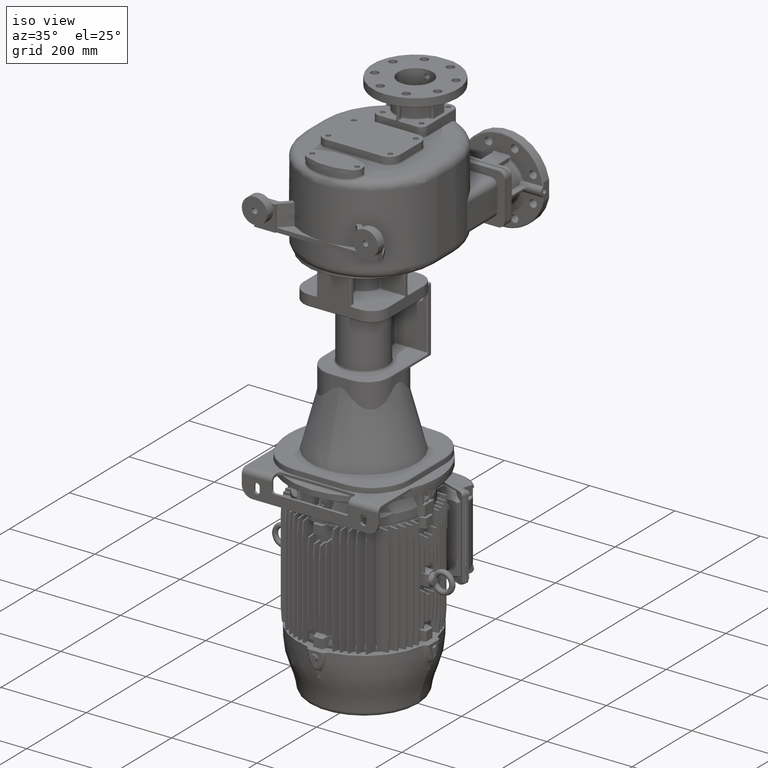
[diagram: clean part render]
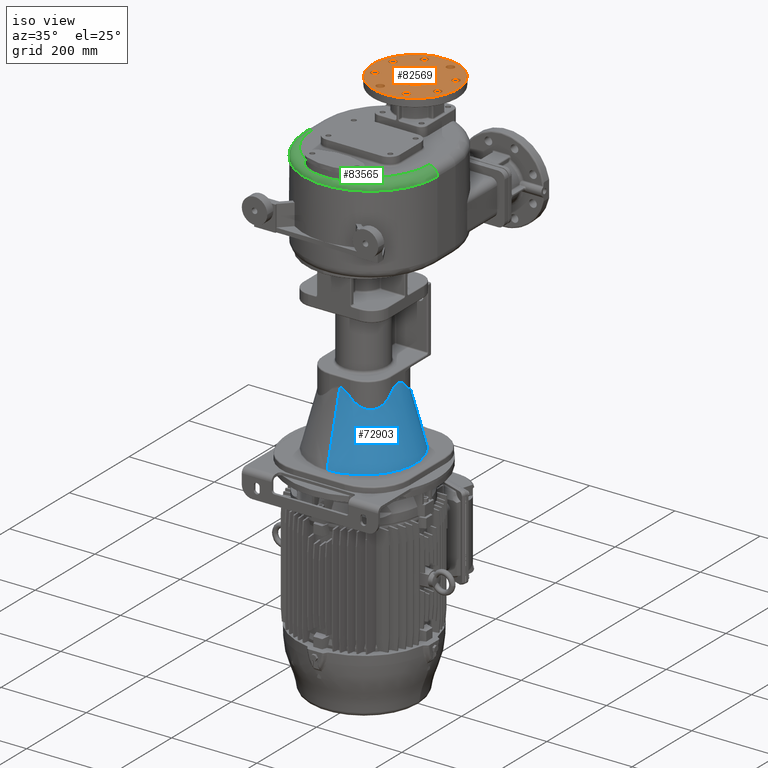
[diagram: same view with three faces highlighted in distinct colors, each labeled with its STEP entity id]
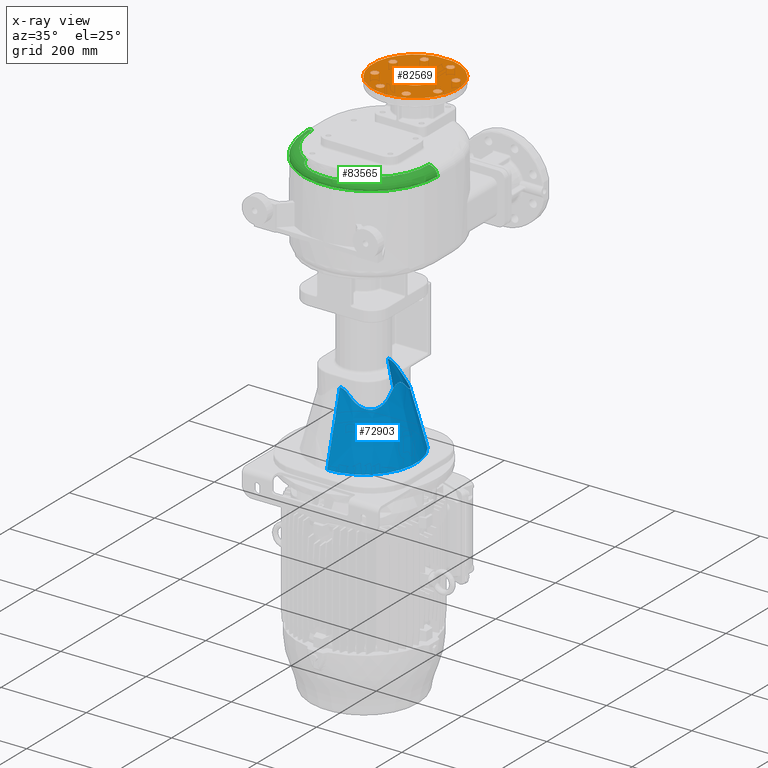
[diagram: x-ray of the same camera — body ghosted, the three highlighted faces saturated]
A machine part, iso view with three faces highlighted in distinct colors.
The next image is the same camera in x-ray (body ghosted, the three faces saturated) — at least one of them is partly hidden behind the body in this view.
Their STEP definitions:

[orange] entity #82569 — the highlighted planar face has unit normal (0, 0, 1).
#21313=CARTESIAN_POINT('',(1.6E1,3.08E2,1.98E2));
#21314=DIRECTION('',(0.E0,0.E0,1.E0));
#21315=DIRECTION('',(-1.989974874213E-1,9.8E-1,0.E0));
#21316=AXIS2_PLACEMENT_3D('',#21313,#21314,#21315);
#21322=DIRECTION('',(1.E0,0.E0,0.E0));
#21323=VECTOR('',#21322,3.979949748426E1);
#21324=CARTESIAN_POINT('',(-3.899748742132E0,4.06E2,1.98E2));
#21325=LINE('',#21324,#21323);
#21326=CARTESIAN_POINT('',(1.6E1,3.08E2,1.98E2));
#21327=DIRECTION('',(0.E0,0.E0,1.E0));
#21328=DIRECTION('',(1.E0,0.E0,0.E0));
#21329=AXIS2_PLACEMENT_3D('',#21326,#21327,#21328);
#21331=CARTESIAN_POINT('',(1.6E1,3.08E2,1.98E2));
#21332=DIRECTION('',(0.E0,0.E0,1.E0));
#21333=DIRECTION('',(-1.E0,0.E0,0.E0));
#21334=AXIS2_PLACEMENT_3D('',#21331,#21332,#21333);
#21336=CARTESIAN_POINT('',(8.991036260090E1,3.386146745892E2,1.98E2));
#21337=DIRECTION('',(0.E0,0.E0,1.E0));
#21338=DIRECTION('',(1.E0,0.E0,0.E0));
#21339=AXIS2_PLACEMENT_3D('',#21336,#21337,#21338);
#21341=CARTESIAN_POINT('',(8.991036260090E1,3.386146745892E2,1.98E2));
#21342=DIRECTION('',(0.E0,0.E0,1.E0));
#21343=DIRECTION('',(-1.E0,0.E0,0.E0));
#21344=AXIS2_PLACEMENT_3D('',#21341,#21342,#21343);
#21346=CARTESIAN_POINT('',(4.661467458921E1,3.819103626009E2,1.98E2));
#21347=DIRECTION('',(0.E0,0.E0,1.E0));
#21348=DIRECTION('',(7.071067811865E-1,7.071067811865E-1,0.E0));
#21349=AXIS2_PLACEMENT_3D('',#21346,#21347,#21348);
#21351=CARTESIAN_POINT('',(4.661467458921E1,3.819103626009E2,1.98E2));
#21352=DIRECTION('',(0.E0,0.E0,1.E0));
#21353=DIRECTION('',(-7.071067811865E-1,-7.071067811865E-1,0.E0));
#21354=AXIS2_PLACEMENT_3D('',#21351,#21352,#21353);
#21356=CARTESIAN_POINT('',(-1.461467458921E1,3.819103626009E2,1.98E2));
#21357=DIRECTION('',(0.E0,0.E0,1.E0));
#21358=DIRECTION('',(0.E0,1.E0,0.E0));
#21359=AXIS2_PLACEMENT_3D('',#21356,#21357,#21358);
#21361=CARTESIAN_POINT('',(-1.461467458921E1,3.819103626009E2,1.98E2));
#21362=DIRECTION('',(0.E0,0.E0,1.E0));
#21363=DIRECTION('',(0.E0,-1.E0,0.E0));
#21364=AXIS2_PLACEMENT_3D('',#21361,#21362,#21363);
#21366=CARTESIAN_POINT('',(-5.791036260090E1,3.386146745892E2,1.98E2));
#21367=DIRECTION('',(0.E0,0.E0,1.E0));
#21368=DIRECTION('',(-7.071067811865E-1,7.071067811865E-1,0.E0));
#21369=AXIS2_PLACEMENT_3D('',#21366,#21367,#21368);
#21371=CARTESIAN_POINT('',(-5.791036260090E1,3.386146745892E2,1.98E2));
#21372=DIRECTION('',(0.E0,0.E0,1.E0));
#21373=DIRECTION('',(7.071067811865E-1,-7.071067811866E-1,0.E0));
#21374=AXIS2_PLACEMENT_3D('',#21371,#21372,#21373);
#21376=CARTESIAN_POINT('',(-5.791036260090E1,2.773853254108E2,1.98E2));
#21377=DIRECTION('',(0.E0,0.E0,1.E0));
#21378=DIRECTION('',(-1.E0,0.E0,0.E0));
#21379=AXIS2_PLACEMENT_3D('',#21376,#21377,#21378);
#21381=CARTESIAN_POINT('',(-5.791036260090E1,2.773853254108E2,1.98E2));
#21382=DIRECTION('',(0.E0,0.E0,1.E0));
#21383=DIRECTION('',(1.E0,0.E0,0.E0));
#21384=AXIS2_PLACEMENT_3D('',#21381,#21382,#21383);
#21386=CARTESIAN_POINT('',(-1.461467458921E1,2.340896373991E2,1.98E2));
#21387=DIRECTION('',(0.E0,0.E0,1.E0));
#21388=DIRECTION('',(-7.071067811865E-1,-7.071067811865E-1,0.E0));
#21389=AXIS2_PLACEMENT_3D('',#21386,#21387,#21388);
#21391=CARTESIAN_POINT('',(-1.461467458921E1,2.340896373991E2,1.98E2));
#21392=DIRECTION('',(0.E0,0.E0,1.E0));
#21393=DIRECTION('',(7.071067811865E-1,7.071067811865E-1,0.E0));
#21394=AXIS2_PLACEMENT_3D('',#21391,#21392,#21393);
#21396=CARTESIAN_POINT('',(4.661467458921E1,2.340896373991E2,1.98E2));
#21397=DIRECTION('',(0.E0,0.E0,1.E0));
#21398=DIRECTION('',(0.E0,-1.E0,0.E0));
#21399=AXIS2_PLACEMENT_3D('',#21396,#21397,#21398);
#21401=CARTESIAN_POINT('',(4.661467458921E1,2.340896373991E2,1.98E2));
#21402=DIRECTION('',(0.E0,0.E0,1.E0));
#21403=DIRECTION('',(0.E0,1.E0,0.E0));
#21404=AXIS2_PLACEMENT_3D('',#21401,#21402,#21403);
#21406=CARTESIAN_POINT('',(8.991036260090E1,2.773853254108E2,1.98E2));
#21407=DIRECTION('',(0.E0,0.E0,1.E0));
#21408=DIRECTION('',(7.071067811865E-1,-7.071067811866E-1,0.E0));
#21409=AXIS2_PLACEMENT_3D('',#21406,#21407,#21408);
#21411=CARTESIAN_POINT('',(8.991036260090E1,2.773853254108E2,1.98E2));
#21412=DIRECTION('',(0.E0,0.E0,1.E0));
#21413=DIRECTION('',(-7.071067811865E-1,7.071067811865E-1,0.E0));
#21414=AXIS2_PLACEMENT_3D('',#21411,#21412,#21413);
#49162=CARTESIAN_POINT('',(-3.899748742132E0,4.06E2,1.98E2));
#49163=CARTESIAN_POINT('',(3.589974874213E1,4.06E2,1.98E2));
#49164=VERTEX_POINT('',#49162);
#49165=VERTEX_POINT('',#49163);
#49463=CARTESIAN_POINT('',(5.7E1,3.08E2,1.98E2));
#49464=CARTESIAN_POINT('',(-2.5E1,3.08E2,1.98E2));
#49465=VERTEX_POINT('',#49463);
#49466=VERTEX_POINT('',#49464);
#49467=CARTESIAN_POINT('',(9.891036260090E1,3.386146745892E2,1.98E2));
#49468=CARTESIAN_POINT('',(8.091036260090E1,3.386146745892E2,1.98E2));
#49469=VERTEX_POINT('',#49467);
#49470=VERTEX_POINT('',#49468);
#49475=CARTESIAN_POINT('',(5.297863561989E1,3.882743236316E2,1.98E2));
#49476=CARTESIAN_POINT('',(4.025071355853E1,3.755464015702E2,1.98E2));
#49477=VERTEX_POINT('',#49475);
#49478=VERTEX_POINT('',#49476);
#49483=CARTESIAN_POINT('',(-1.461467458921E1,3.909103626009E2,1.98E2));
#49484=CARTESIAN_POINT('',(-1.461467458921E1,3.729103626009E2,1.98E2));
#49485=VERTEX_POINT('',#49483);
#49486=VERTEX_POINT('',#49484);
#49491=CARTESIAN_POINT('',(-6.427432363158E1,3.449786356199E2,1.98E2));
#49492=CARTESIAN_POINT('',(-5.154640157022E1,3.322507135585E2,1.98E2));
#49493=VERTEX_POINT('',#49491);
#49494=VERTEX_POINT('',#49492);
#49499=CARTESIAN_POINT('',(-6.691036260090E1,2.773853254108E2,1.98E2));
#49500=CARTESIAN_POINT('',(-4.891036260090E1,2.773853254108E2,1.98E2));
#49501=VERTEX_POINT('',#49499);
#49502=VERTEX_POINT('',#49500);
#49507=CARTESIAN_POINT('',(-2.097863561989E1,2.277256763684E2,1.98E2));
#49508=CARTESIAN_POINT('',(-8.250713558528E0,2.404535984298E2,1.98E2));
#49509=VERTEX_POINT('',#49507);
#49510=VERTEX_POINT('',#49508);
#49515=CARTESIAN_POINT('',(4.661467458921E1,2.250896373991E2,1.98E2));
#49516=CARTESIAN_POINT('',(4.661467458921E1,2.430896373991E2,1.98E2));
#49517=VERTEX_POINT('',#49515);
#49518=VERTEX_POINT('',#49516);
#49523=CARTESIAN_POINT('',(9.627432363158E1,2.710213643801E2,1.98E2));
#49524=CARTESIAN_POINT('',(8.354640157022E1,2.837492864415E2,1.98E2));
#49525=VERTEX_POINT('',#49523);
#49526=VERTEX_POINT('',#49524);
#82506=CARTESIAN_POINT('',(1.6E1,3.08E2,1.98E2));
#82507=DIRECTION('',(0.E0,0.E0,1.E0));
#82508=DIRECTION('',(0.E0,1.E0,0.E0));
#82509=AXIS2_PLACEMENT_3D('',#82506,#82507,#82508);
#82510=PLANE('',#82509);
#82511=ORIENTED_EDGE('',*,*,#80061,.T.);
#82512=ORIENTED_EDGE('',*,*,#82500,.F.);
#82513=EDGE_LOOP('',(#82511,#82512));
#82514=FACE_OUTER_BOUND('',#82513,.F.);
#82516=ORIENTED_EDGE('',*,*,#82515,.T.);
#82518=ORIENTED_EDGE('',*,*,#82517,.T.);
#82519=EDGE_LOOP('',(#82516,#82518));
#82520=FACE_BOUND('',#82519,.F.);
#82522=ORIENTED_EDGE('',*,*,#82521,.T.);
#82524=ORIENTED_EDGE('',*,*,#82523,.T.);
#82525=EDGE_LOOP('',(#82522,#82524));
#82526=FACE_BOUND('',#82525,.F.);
#82528=ORIENTED_EDGE('',*,*,#82527,.T.);
#82530=ORIENTED_EDGE('',*,*,#82529,.T.);
#82531=EDGE_LOOP('',(#82528,#82530));
#82532=FACE_BOUND('',#82531,.F.);
#82534=ORIENTED_EDGE('',*,*,#82533,.T.);
#82536=ORIENTED_EDGE('',*,*,#82535,.T.);
#82537=EDGE_LOOP('',(#82534,#82536));
#82538=FACE_BOUND('',#82537,.F.);
#82540=ORIENTED_EDGE('',*,*,#82539,.T.);
#82542=ORIENTED_EDGE('',*,*,#82541,.T.);
#82543=EDGE_LOOP('',(#82540,#82542));
#82544=FACE_BOUND('',#82543,.F.);
#82546=ORIENTED_EDGE('',*,*,#82545,.T.);
#82548=ORIENTED_EDGE('',*,*,#82547,.T.);
#82549=EDGE_LOOP('',(#82546,#82548));
#82550=FACE_BOUND('',#82549,.F.);
#82552=ORIENTED_EDGE('',*,*,#82551,.T.);
#82554=ORIENTED_EDGE('',*,*,#82553,.T.);
#82555=EDGE_LOOP('',(#82552,#82554));
#82556=FACE_BOUND('',#82555,.F.);
#82558=ORIENTED_EDGE('',*,*,#82557,.T.);
#82560=ORIENTED_EDGE('',*,*,#82559,.T.);
#82561=EDGE_LOOP('',(#82558,#82560));
#82562=FACE_BOUND('',#82561,.F.);
#82564=ORIENTED_EDGE('',*,*,#82563,.T.);
#82566=ORIENTED_EDGE('',*,*,#82565,.T.);
#82567=EDGE_LOOP('',(#82564,#82566));
#82568=FACE_BOUND('',#82567,.F.);
#82569=ADVANCED_FACE('',(#82514,#82520,#82526,#82532,#82538,#82544,#82550,
#82556,#82562,#82568),#82510,.T.);
#21317=CIRCLE('',#21316,1.E2);
#21330=CIRCLE('',#21329,4.1E1);
#21335=CIRCLE('',#21334,4.1E1);
#21340=CIRCLE('',#21339,9.E0);
#21345=CIRCLE('',#21344,9.E0);
#21350=CIRCLE('',#21349,9.E0);
#21355=CIRCLE('',#21354,9.E0);
#21360=CIRCLE('',#21359,9.E0);
#21365=CIRCLE('',#21364,9.E0);
#21370=CIRCLE('',#21369,9.E0);
#21375=CIRCLE('',#21374,9.E0);
#21380=CIRCLE('',#21379,9.E0);
#21385=CIRCLE('',#21384,9.E0);
#21390=CIRCLE('',#21389,9.E0);
#21395=CIRCLE('',#21394,9.E0);
#21400=CIRCLE('',#21399,9.E0);
#21405=CIRCLE('',#21404,9.E0);
#21410=CIRCLE('',#21409,9.E0);
#21415=CIRCLE('',#21414,9.E0);
#80061=EDGE_CURVE('',#49164,#49165,#21325,.T.);
#82500=EDGE_CURVE('',#49164,#49165,#21317,.T.);
#82515=EDGE_CURVE('',#49465,#49466,#21330,.T.);
#82517=EDGE_CURVE('',#49466,#49465,#21335,.T.);
#82521=EDGE_CURVE('',#49469,#49470,#21340,.T.);
#82523=EDGE_CURVE('',#49470,#49469,#21345,.T.);
#82527=EDGE_CURVE('',#49477,#49478,#21350,.T.);
#82529=EDGE_CURVE('',#49478,#49477,#21355,.T.);
#82533=EDGE_CURVE('',#49485,#49486,#21360,.T.);
#82535=EDGE_CURVE('',#49486,#49485,#21365,.T.);
#82539=EDGE_CURVE('',#49493,#49494,#21370,.T.);
#82541=EDGE_CURVE('',#49494,#49493,#21375,.T.);
#82545=EDGE_CURVE('',#49501,#49502,#21380,.T.);
#82547=EDGE_CURVE('',#49502,#49501,#21385,.T.);
#82551=EDGE_CURVE('',#49509,#49510,#21390,.T.);
#82553=EDGE_CURVE('',#49510,#49509,#21395,.T.);
#82557=EDGE_CURVE('',#49517,#49518,#21400,.T.);
#82559=EDGE_CURVE('',#49518,#49517,#21405,.T.);
#82563=EDGE_CURVE('',#49525,#49526,#21410,.T.);
#82565=EDGE_CURVE('',#49526,#49525,#21415,.T.);

[blue] entity #72903 — the highlighted conical surface has half-angle 15 deg.
#14194=CARTESIAN_POINT('',(-1.898481759786E-14,1.58E2,-5.362764571353E2));
#14195=DIRECTION('',(0.E0,0.E0,1.E0));
#14196=DIRECTION('',(2.376209689192E-1,-9.713579541703E-1,0.E0));
#14197=AXIS2_PLACEMENT_3D('',#14194,#14195,#14196);
#14235=CARTESIAN_POINT('',(-3.750284373163E-14,2.381022225205E2,
-3.773500949365E2));
#14543=DIRECTION('',(0.E0,2.588190451061E-1,9.659258262881E-1));
#14544=VECTOR('',#14543,1.645326772238E2);
#14545=CARTESIAN_POINT('',(0.E0,3.531358707165E1,-5.362764571353E2));
#14546=LINE('',#14545,#14544);
#14547=CARTESIAN_POINT('',(2.319506396796E1,7.778373711082E1,
-3.900399315817E2));
#14548=CARTESIAN_POINT('',(2.288359843523E1,7.778661370874E1,
-3.897067289652E2));
#14549=CARTESIAN_POINT('',(2.226863818762E1,7.779220502480E1,
-3.890611301452E2));
#14550=CARTESIAN_POINT('',(2.137324140060E1,7.780009239633E1,
-3.881557259198E2));
#14551=CARTESIAN_POINT('',(2.050004827563E1,7.780753607654E1,
-3.873058945816E2));
#14552=CARTESIAN_POINT('',(1.964856931573E1,7.781455187850E1,
-3.865090249327E2));
#14553=CARTESIAN_POINT('',(1.881811140830E1,7.782115765770E1,
-3.857623363367E2));
#14554=CARTESIAN_POINT('',(1.800717068037E1,7.782737707550E1,
-3.850625046679E2));
#14555=CARTESIAN_POINT('',(1.721497222698E1,7.783322727207E1,
-3.844070239507E2));
#14556=CARTESIAN_POINT('',(1.644044440833E1,7.783872706077E1,
-3.837932733923E2));
#14557=CARTESIAN_POINT('',(1.568268036622E1,7.784389316103E1,
-3.832189200329E2));
#14558=CARTESIAN_POINT('',(1.494077587742E1,7.784874167591E1,
-3.826817647559E2));
#14559=CARTESIAN_POINT('',(1.421386435068E1,7.785328777749E1,
-3.821797665888E2));
#14560=CARTESIAN_POINT('',(1.350111279408E1,7.785754575579E1,
-3.817110299790E2));
#14561=CARTESIAN_POINT('',(1.280171576461E1,7.786152905448E1,
-3.812737936328E2));
#14562=CARTESIAN_POINT('',(1.211489612809E1,7.786525027638E1,
-3.808664241492E2));
#14563=CARTESIAN_POINT('',(1.143990248715E1,7.786872119480E1,
-3.804874079932E2));
#14564=CARTESIAN_POINT('',(1.077600792649E1,7.787195280823E1,
-3.801353446267E2));
#14565=CARTESIAN_POINT('',(1.012250753636E1,7.787495539918E1,
-3.798089394529E2));
#14566=CARTESIAN_POINT('',(9.478717047014E0,7.787773853977E1,
-3.795069980713E2));
#14567=CARTESIAN_POINT('',(8.843971320534E0,7.788031110969E1,
-3.792284208210E2));
#14568=CARTESIAN_POINT('',(8.217622980455E0,7.788268131483E1,
-3.789721977943E2));
#14569=CARTESIAN_POINT('',(7.599041007341E0,7.788485669848E1,
-3.787374042576E2));
#14570=CARTESIAN_POINT('',(6.987610053467E0,7.788684419868E1,
-3.785231965037E2));
#14571=CARTESIAN_POINT('',(6.382728527638E0,7.788865017662E1,
-3.783288077016E2));
#14572=CARTESIAN_POINT('',(5.783807710785E0,7.789028041059E1,
-3.781535446081E2));
#14573=CARTESIAN_POINT('',(5.190269569584E0,7.789174011402E1,
-3.779967841122E2));
#14574=CARTESIAN_POINT('',(4.601547002466E0,7.789303394111E1,
-3.778579709856E2));
#14575=CARTESIAN_POINT('',(4.017084441943E0,7.789416600345E1,
-3.777366151512E2));
#14576=CARTESIAN_POINT('',(3.436319602490E0,7.789513989709E1,
-3.776322874809E2));
#14577=CARTESIAN_POINT('',(2.858749675755E0,7.789595869338E1,
-3.775446265706E2));
#14578=CARTESIAN_POINT('',(2.283741555897E0,7.789662515704E1,
-3.774733127190E2));
#14579=CARTESIAN_POINT('',(1.710935328609E0,7.789714119506E1,
-3.774181163803E2));
#14580=CARTESIAN_POINT('',(1.139637366501E0,7.789750873704E1,
-3.773788219682E2));
#14581=CARTESIAN_POINT('',(5.691455433598E-1,7.789772876202E1,
-3.773553004476E2));
#14582=CARTESIAN_POINT('',(1.896066888692E-1,7.789777746899E1,
-3.773500950132E2));
#14583=CARTESIAN_POINT('',(2.926700974624E-14,7.789777747946E1,
-3.773500949365E2));
#14585=CARTESIAN_POINT('',(8.021626288916E1,1.348049360320E2,
-3.900399315817E2));
#14586=CARTESIAN_POINT('',(8.021999475137E1,1.344008613964E2,
-3.904722062734E2));
#14587=CARTESIAN_POINT('',(8.021874098262E1,1.335974927809E2,
-3.913206516273E2));
#14588=CARTESIAN_POINT('',(8.019169096466E1,1.324084485168E2,
-3.925448786536E2));
#14589=CARTESIAN_POINT('',(8.014043502414E1,1.312351076057E2,
-3.937225575458E2));
#14590=CARTESIAN_POINT('',(8.006591372383E1,1.300778873720E2,
-3.948547530877E2));
#14591=CARTESIAN_POINT('',(7.996906092865E1,1.289370905124E2,
-3.959426080158E2));
#14592=CARTESIAN_POINT('',(7.985076686370E1,1.278127590410E2,
-3.969874556058E2));
#14593=CARTESIAN_POINT('',(7.971190654322E1,1.267050385704E2,
-3.979904709308E2));
#14594=CARTESIAN_POINT('',(7.955332194693E1,1.256139720782E2,
-3.989528692945E2));
#14595=CARTESIAN_POINT('',(7.937582728283E1,1.245395815964E2,
-3.998758287319E2));
#14596=CARTESIAN_POINT('',(7.918020743301E1,1.234818542278E2,
-4.007605048759E2));
#14597=CARTESIAN_POINT('',(7.896721672202E1,1.224407435813E2,
-4.016080298810E2));
#14598=CARTESIAN_POINT('',(7.873757912815E1,1.214161753893E2,
-4.024195085420E2));
#14599=CARTESIAN_POINT('',(7.849198753309E1,1.204080477121E2,
-4.031960188631E2));
#14600=CARTESIAN_POINT('',(7.823110376669E1,1.194162344945E2,
-4.039386098971E2));
#14601=CARTESIAN_POINT('',(7.795555850643E1,1.184405870746E2,
-4.046483018131E2));
#14602=CARTESIAN_POINT('',(7.766595128989E1,1.174809363509E2,
-4.053260850308E2));
#14603=CARTESIAN_POINT('',(7.736285062766E1,1.165370947842E2,
-4.059729196012E2));
#14604=CARTESIAN_POINT('',(7.704679418406E1,1.156088582864E2,
-4.065897347049E2));
#14605=CARTESIAN_POINT('',(7.671828912981E1,1.146960083458E2,
-4.071774279835E2));
#14606=CARTESIAN_POINT('',(7.637781260497E1,1.137983139864E2,
-4.077368651744E2));
#14607=CARTESIAN_POINT('',(7.602581202268E1,1.129155330274E2,
-4.082688802583E2));
#14608=CARTESIAN_POINT('',(7.566270553545E1,1.120474137552E2,
-4.087742751848E2));
#14609=CARTESIAN_POINT('',(7.528888254091E1,1.111936964524E2,
-4.092538197483E2));
#14610=CARTESIAN_POINT('',(7.490470419167E1,1.103541148010E2,
-4.097082515238E2));
#14611=CARTESIAN_POINT('',(7.451050416815E1,1.095283976472E2,
-4.101382756973E2));
#14612=CARTESIAN_POINT('',(7.410658931007E1,1.087162702196E2,
-4.105445652939E2));
#14613=CARTESIAN_POINT('',(7.369324007978E1,1.079174550453E2,
-4.109277613753E2));
#14614=CARTESIAN_POINT('',(7.327071123717E1,1.071316732009E2,
-4.112884730981E2));
#14615=CARTESIAN_POINT('',(7.283923248650E1,1.063586453980E2,
-4.116272778687E2));
#14616=CARTESIAN_POINT('',(7.239900906018E1,1.055980929291E2,
-4.119447214972E2));
#14617=CARTESIAN_POINT('',(7.195022273368E1,1.048497391345E2,
-4.122413183860E2));
#14618=CARTESIAN_POINT('',(7.149303232423E1,1.041133099866E2,
-4.125175519192E2));
#14619=CARTESIAN_POINT('',(7.102757426105E1,1.033885348761E2,
-4.127738745976E2));
#14620=CARTESIAN_POINT('',(7.055396319337E1,1.026751473631E2,
-4.130107082967E2));
#14621=CARTESIAN_POINT('',(7.007229264586E1,1.019728859880E2,
-4.132284444684E2));
#14622=CARTESIAN_POINT('',(6.958263580990E1,1.012814952499E2,
-4.134274442559E2));
#14623=CARTESIAN_POINT('',(6.908504620455E1,1.006007261783E2,
-4.136080390797E2));
#14624=CARTESIAN_POINT('',(6.857955829682E1,9.993033705086E1,
-4.137705307193E2));
#14625=CARTESIAN_POINT('',(6.806618784283E1,9.927009372312E1,
-4.139151914908E2));
#14626=CARTESIAN_POINT('',(6.754493259092E1,9.861977040020E1,
-4.140422644003E2));
#14627=CARTESIAN_POINT('',(6.701577296307E1,9.797915034030E1,
-4.141519633128E2));
#14628=CARTESIAN_POINT('',(6.647867249737E1,9.734802627631E1,
-4.142444731146E2));
#14629=CARTESIAN_POINT('',(6.593357867288E1,9.672620111729E1,
-4.143199502163E2));
#14630=CARTESIAN_POINT('',(6.538042319655E1,9.611348828749E1,
-4.143785224372E2));
#14631=CARTESIAN_POINT('',(6.481912245121E1,9.550971219249E1,
-4.144202890442E2));
#14632=CARTESIAN_POINT('',(6.424957809332E1,9.491470882530E1,
-4.144453208211E2));
#14633=CARTESIAN_POINT('',(6.367167767168E1,9.432832638165E1,
-4.144536601243E2));
#14634=CARTESIAN_POINT('',(6.308529513274E1,9.375042574892E1,
-4.144453209345E2));
#14635=CARTESIAN_POINT('',(6.249029148923E1,9.318088101832E1,
-4.144202892519E2));
#14636=CARTESIAN_POINT('',(6.188651487529E1,9.261957969482E1,
-4.143785227047E2));
#14637=CARTESIAN_POINT('',(6.127380142485E1,9.206642358237E1,
-4.143199504999E2));
#14638=CARTESIAN_POINT('',(6.065197570909E1,9.152132921331E1,
-4.142444733834E2));
#14639=CARTESIAN_POINT('',(6.002085108896E1,9.098422823044E1,
-4.141519635454E2));
#14640=CARTESIAN_POINT('',(5.938023054361E1,9.045506817324E1,
-4.140422645768E2));
#14641=CARTESIAN_POINT('',(5.872990670256E1,8.993381248856E1,
-4.139151915840E2));
#14642=CARTESIAN_POINT('',(5.806966279405E1,8.942044157946E1,
-4.137705306891E2));
#14643=CARTESIAN_POINT('',(5.739927310856E1,8.891495326259E1,
-4.136080389013E2));
#14644=CARTESIAN_POINT('',(5.671850355746E1,8.841736332872E1,
-4.134274439287E2));
#14645=CARTESIAN_POINT('',(5.602711234456E1,8.792770618870E1,
-4.132284439732E2));
#14646=CARTESIAN_POINT('',(5.532485051912E1,8.744603537431E1,
-4.130107076195E2));
#14647=CARTESIAN_POINT('',(5.461146248576E1,8.697242401251E1,
-4.127738736970E2));
#14648=CARTESIAN_POINT('',(5.388668686929E1,8.650696568726E1,
-4.125175507766E2));
#14649=CARTESIAN_POINT('',(5.315025726999E1,8.604977506953E1,
-4.122413170017E2));
#14650=CARTESIAN_POINT('',(5.240190303340E1,8.560098855787E1,
-4.119447198577E2));
#14651=CARTESIAN_POINT('',(5.164135011423E1,8.516076495979E1,
-4.116272759508E2));
#14652=CARTESIAN_POINT('',(5.086832184651E1,8.472928604640E1,
-4.112884708793E2));
#14653=CARTESIAN_POINT('',(5.008253957232E1,8.430675707849E1,
-4.109277588510E2));
#14654=CARTESIAN_POINT('',(4.928372402953E1,8.389340777025E1,
-4.105445624777E2));
#14655=CARTESIAN_POINT('',(4.847159627378E1,8.348949286760E1,
-4.101382725954E2));
#14656=CARTESIAN_POINT('',(4.764587880691E1,8.309529281879E1,
-4.097082481309E2));
#14657=CARTESIAN_POINT('',(4.680629688039E1,8.271111447299E1,
-4.092538160727E2));
#14658=CARTESIAN_POINT('',(4.595257936010E1,8.233729151685E1,
-4.087742712478E2));
#14659=CARTESIAN_POINT('',(4.508445991862E1,8.197418509544E1,
-4.082688760799E2));
#14660=CARTESIAN_POINT('',(4.420167882856E1,8.162218459990E1,
-4.077368607707E2));
#14661=CARTESIAN_POINT('',(4.330398438563E1,8.128170818419E1,
-4.071774233787E2));
#14662=CARTESIAN_POINT('',(4.239113441322E1,8.095320326007E1,
-4.065897299289E2));
#14663=CARTESIAN_POINT('',(4.146289791125E1,8.063714695651E1,
-4.059729146708E2));
#14664=CARTESIAN_POINT('',(4.051905637518E1,8.033404644563E1,
-4.053260799685E2));
#14665=CARTESIAN_POINT('',(3.955940577378E1,8.004443940612E1,
-4.046482966851E2));
#14666=CARTESIAN_POINT('',(3.858375853649E1,7.976889433445E1,
-4.039386047516E2));
#14667=CARTESIAN_POINT('',(3.759194551382E1,7.950801075267E1,
-4.031960137163E2));
#14668=CARTESIAN_POINT('',(3.658381806421E1,7.926241934306E1,
-4.024195034262E2));
#14669=CARTESIAN_POINT('',(3.555925023670E1,7.903278195615E1,
-4.016080249129E2));
#14670=CARTESIAN_POINT('',(3.451814004775E1,7.881979145516E1,
-4.007605001489E2));
#14671=CARTESIAN_POINT('',(3.346041308294E1,7.862417178895E1,
-3.998758242172E2));
#14672=CARTESIAN_POINT('',(3.238602308432E1,7.844667730581E1,
-3.989528650794E2));
#14673=CARTESIAN_POINT('',(3.129495724673E1,7.828809289526E1,
-3.979904671871E2));
#14674=CARTESIAN_POINT('',(3.018723745920E1,7.814923273800E1,
-3.969874523892E2));
#14675=CARTESIAN_POINT('',(2.906290674210E1,7.803093881497E1,
-3.959426054254E2));
#14676=CARTESIAN_POINT('',(2.792211030136E1,7.793408610396E1,
-3.948547508389E2));
#14677=CARTESIAN_POINT('',(2.676489032510E1,7.785956486764E1,
-3.937225554906E2));
#14678=CARTESIAN_POINT('',(2.559155011324E1,7.780830899421E1,
-3.925448772561E2));
#14679=CARTESIAN_POINT('',(2.440250643313E1,7.778125901340E1,
-3.913206507998E2));
#14680=CARTESIAN_POINT('',(2.359913833066E1,7.778000524917E1,
-3.904722059849E2));
#14681=CARTESIAN_POINT('',(2.319506396796E1,7.778373711082E1,
-3.900399315817E2));
#14683=CARTESIAN_POINT('',(8.021626288916E1,1.811950639679E2,
-3.900399315817E2));
#14684=CARTESIAN_POINT('',(8.021337708996E1,1.808826019543E2,
-3.897056629505E2));
#14685=CARTESIAN_POINT('',(8.020776865407E1,1.802657261676E2,
-3.890580940221E2));
#14686=CARTESIAN_POINT('',(8.019985970962E1,1.793677366824E2,
-3.881502322208E2));
#14687=CARTESIAN_POINT('',(8.019239756696E1,1.784921504811E2,
-3.872983291904E2));
#14688=CARTESIAN_POINT('',(8.018536823674E1,1.776387232108E2,
-3.864999695796E2));
#14689=CARTESIAN_POINT('',(8.017875137900E1,1.768064943415E2,
-3.857520825888E2));
#14690=CARTESIAN_POINT('',(8.017252416041E1,1.759940725855E2,
-3.850514202157E2));
#14691=CARTESIAN_POINT('',(8.016666871228E1,1.752006236648E2,
-3.843953925218E2));
#14692=CARTESIAN_POINT('',(8.016116586727E1,1.744250655111E2,
-3.837813451027E2));
#14693=CARTESIAN_POINT('',(8.015599864105E1,1.736664798874E2,
-3.832069118934E2));
#14694=CARTESIAN_POINT('',(8.015115068624E1,1.729239470027E2,
-3.826698605547E2));
#14695=CARTESIAN_POINT('',(8.014660659167E1,1.721965877414E2,
-3.821681215398E2));
#14696=CARTESIAN_POINT('',(8.014235183219E1,1.714835562918E2,
-3.816997727583E2));
#14697=CARTESIAN_POINT('',(8.013837274469E1,1.707840355214E2,
-3.812630292559E2));
#14698=CARTESIAN_POINT('',(8.013465653049E1,1.700972369761E2,
-3.808562361784E2));
#14699=CARTESIAN_POINT('',(8.013119126653E1,1.694223992958E2,
-3.804778612094E2));
#14700=CARTESIAN_POINT('',(8.012796579074E1,1.687587857229E2,
-3.801264865762E2));
#14701=CARTESIAN_POINT('',(8.012496966900E1,1.681056819817E2,
-3.798008021824E2));
#14702=CARTESIAN_POINT('',(8.012219319509E1,1.674623948039E2,
-3.794995996979E2));
#14703=CARTESIAN_POINT('',(8.011962737517E1,1.668282504710E2,
-3.792217670196E2));
#14704=CARTESIAN_POINT('',(8.011726392488E1,1.662025933034E2,
-3.789662831902E2));
#14705=CARTESIAN_POINT('',(8.011509519420E1,1.655847853975E2,
-3.787322138831E2));
#14706=CARTESIAN_POINT('',(8.011311413345E1,1.649742041898E2,
-3.785187065283E2));
#14707=CARTESIAN_POINT('',(8.011131430379E1,1.643702410777E2,
-3.783249864897E2));
#14708=CARTESIAN_POINT('',(8.010968986696E1,1.637723002561E2,
-3.781503535738E2));
#14709=CARTESIAN_POINT('',(8.010823557243E1,1.631797975684E2,
-3.779941788510E2));
#14710=CARTESIAN_POINT('',(8.010694675880E1,1.625921594177E2,
-3.778559018586E2));
#14711=CARTESIAN_POINT('',(8.010581922861E1,1.620088222566E2,
-3.777350277208E2));
#14712=CARTESIAN_POINT('',(8.010484929848E1,1.614292306397E2,
-3.776311248865E2));
#14713=CARTESIAN_POINT('',(8.010403381357E1,1.608528362013E2,
-3.775438232905E2));
#14714=CARTESIAN_POINT('',(8.010337013943E1,1.602790966568E2,
-3.774728126871E2));
#14715=CARTESIAN_POINT('',(8.010285615574E1,1.597074748099E2,
-3.774178412505E2));
#14716=CARTESIAN_POINT('',(8.010249025446E1,1.591374376386E2,
-3.773787144484E2));
#14717=CARTESIAN_POINT('',(8.010227120782E1,1.585684553764E2,
-3.773552936624E2));
#14718=CARTESIAN_POINT('',(8.010219827448E1,1.580000000988E2,
-3.773474959356E2));
#14719=CARTESIAN_POINT('',(8.010227120786E1,1.574315448213E2,
-3.773552936573E2));
#14720=CARTESIAN_POINT('',(8.010249025448E1,1.568625625594E2,
-3.773787144380E2));
#14721=CARTESIAN_POINT('',(8.010285615557E1,1.562925253885E2,
-3.774178412341E2));
#14722=CARTESIAN_POINT('',(8.010337013910E1,1.557209035423E2,
-3.774728126648E2));
#14723=CARTESIAN_POINT('',(8.010403381324E1,1.551471639986E2,
-3.775438232627E2));
#14724=CARTESIAN_POINT('',(8.010484929819E1,1.545707695613E2,
-3.776311248533E2));
#14725=CARTESIAN_POINT('',(8.010581922833E1,1.539911779457E2,
-3.777350276820E2));
#14726=CARTESIAN_POINT('',(8.010694675848E1,1.534078407862E2,
-3.778559018139E2));
#14727=CARTESIAN_POINT('',(8.010823557191E1,1.528202026368E2,
-3.779941787997E2));
#14728=CARTESIAN_POINT('',(8.010968986633E1,1.522276999508E2,
-3.781503535160E2));
#14729=CARTESIAN_POINT('',(8.011131430316E1,1.516297591313E2,
-3.783249864255E2));
#14730=CARTESIAN_POINT('',(8.011311413282E1,1.510257960217E2,
-3.785187064575E2));
#14731=CARTESIAN_POINT('',(8.011509519353E1,1.504152148166E2,
-3.787322138053E2));
#14732=CARTESIAN_POINT('',(8.011726392413E1,1.497974069134E2,
-3.789662831051E2));
#14733=CARTESIAN_POINT('',(8.011962737427E1,1.491717497483E2,
-3.792217669267E2));
#14734=CARTESIAN_POINT('',(8.012219319414E1,1.485376054184E2,
-3.794995995970E2));
#14735=CARTESIAN_POINT('',(8.012496966801E1,1.478943182440E2,
-3.798008020733E2));
#14736=CARTESIAN_POINT('',(8.012796578967E1,1.472412145066E2,
-3.801264864584E2));
#14737=CARTESIAN_POINT('',(8.013119126535E1,1.465776009376E2,
-3.804778610822E2));
#14738=CARTESIAN_POINT('',(8.013465652918E1,1.459027632613E2,
-3.808562360413E2));
#14739=CARTESIAN_POINT('',(8.013837274336E1,1.452159647201E2,
-3.812630291090E2));
#14740=CARTESIAN_POINT('',(8.014235183084E1,1.445164439544E2,
-3.816997726009E2));
#14741=CARTESIAN_POINT('',(8.014660659021E1,1.438034125104E2,
-3.821681213706E2));
#14742=CARTESIAN_POINT('',(8.015115068458E1,1.430760532544E2,
-3.826698603730E2));
#14743=CARTESIAN_POINT('',(8.015599863917E1,1.423335203729E2,
-3.832069117003E2));
#14744=CARTESIAN_POINT('',(8.016116586524E1,1.415749347523E2,
-3.837813448979E2));
#14745=CARTESIAN_POINT('',(8.016666871044E1,1.407993766078E2,
-3.843953923020E2));
#14746=CARTESIAN_POINT('',(8.017252415838E1,1.400059277113E2,
-3.850514199655E2));
#14747=CARTESIAN_POINT('',(8.017875137715E1,1.391935059381E2,
-3.857520823445E2));
#14748=CARTESIAN_POINT('',(8.018536823382E1,1.383612771371E2,
-3.864999692590E2));
#14749=CARTESIAN_POINT('',(8.019239756507E1,1.375078497174E2,
-3.872983290008E2));
#14750=CARTESIAN_POINT('',(8.019985970512E1,1.366322637709E2,
-3.881502317716E2));
#14751=CARTESIAN_POINT('',(8.020776865E1,1.357342742458E2,-3.890580935917E2));
#14752=CARTESIAN_POINT('',(8.021337708847E1,1.351173982165E2,
-3.897056627684E2));
#14753=CARTESIAN_POINT('',(8.021626288916E1,1.348049360320E2,
-3.900399315817E2));
#14755=CARTESIAN_POINT('',(2.319506396795E1,2.382162628892E2,
-3.900399315817E2));
#14756=CARTESIAN_POINT('',(2.359913855122E1,2.382199947508E2,
-3.904722062173E2));
#14757=CARTESIAN_POINT('',(2.440250705360E1,2.382187409837E2,
-3.913206514540E2));
#14758=CARTESIAN_POINT('',(2.559155114191E1,2.381916909745E2,
-3.925448783055E2));
#14759=CARTESIAN_POINT('',(2.676489181781E1,2.381404350550E2,
-3.937225569742E2));
#14760=CARTESIAN_POINT('',(2.792211214042E1,2.380659137603E2,
-3.948547526164E2));
#14761=CARTESIAN_POINT('',(2.906290894038E1,2.379690609804E2,
-3.959426074994E2));
#14762=CARTESIAN_POINT('',(3.018724053434E1,2.378507669132E2,
-3.969874552170E2));
#14763=CARTESIAN_POINT('',(3.129496095880E1,2.377119066066E2,
-3.979904705103E2));
#14764=CARTESIAN_POINT('',(3.238602739164E1,2.375533220296E2,
-3.989528688343E2));
#14765=CARTESIAN_POINT('',(3.346041793316E1,2.373758273655E2,
-3.998758283327E2));
#14766=CARTESIAN_POINT('',(3.451814536720E1,2.371802075119E2,
-4.007605045416E2));
#14767=CARTESIAN_POINT('',(3.555925596754E1,2.369672168181E2,
-4.016080295175E2));
#14768=CARTESIAN_POINT('',(3.658382414398E1,2.367375792376E2,
-4.024195081781E2));
#14769=CARTESIAN_POINT('',(3.759195188162E1,2.364919876365E2,
-4.031960185552E2));
#14770=CARTESIAN_POINT('',(3.858376513255E1,2.362311038684E2,
-4.039386096219E2));
#14771=CARTESIAN_POINT('',(3.955941254025E1,2.359555586188E2,
-4.046483015369E2));
#14772=CARTESIAN_POINT('',(4.051906325604E1,2.356659514123E2,
-4.053260847570E2));
#14773=CARTESIAN_POINT('',(4.146290485215E1,2.353628507481E2,
-4.059729193558E2));
#14774=CARTESIAN_POINT('',(4.239114136216E1,2.350467943071E2,
-4.065897344751E2));
#14775=CARTESIAN_POINT('',(4.330399129188E1,2.347182892637E2,
-4.071774277539E2));
#14776=CARTESIAN_POINT('',(4.420168564380E1,2.343778127488E2,
-4.077368649477E2));
#14777=CARTESIAN_POINT('',(4.508446659683E1,2.340258121761E2,
-4.082688800356E2));
#14778=CARTESIAN_POINT('',(4.595258585778E1,2.336627057010E2,
-4.087742749633E2));
#14779=CARTESIAN_POINT('',(4.680630315681E1,2.332888827160E2,
-4.092538195331E2));
#14780=CARTESIAN_POINT('',(4.764588482410E1,2.329047043670E2,
-4.097082513248E2));
#14781=CARTESIAN_POINT('',(4.847160199509E1,2.325105043424E2,
-4.101382755145E2));
#14782=CARTESIAN_POINT('',(4.928372942113E1,2.321065894923E2,
-4.105445651175E2));
#14783=CARTESIAN_POINT('',(5.008254460358E1,2.316932402651E2,
-4.109277612106E2));
#14784=CARTESIAN_POINT('',(5.086832648970E1,2.312707114073E2,
-4.112884729605E2));
#14785=CARTESIAN_POINT('',(5.164135434376E1,2.308392326334E2,
-4.116272777582E2));
#14786=CARTESIAN_POINT('',(5.240190682594E1,2.303990092046E2,
-4.119447213977E2));
#14787=CARTESIAN_POINT('',(5.315026060442E1,2.299502228926E2,
-4.122413182845E2));
#14788=CARTESIAN_POINT('',(5.388668972758E1,2.294930325046E2,
-4.125175518148E2));
#14789=CARTESIAN_POINT('',(5.461146485234E1,2.290275744388E2,
-4.127738745052E2));
#14790=CARTESIAN_POINT('',(5.532485238079E1,2.285539633660E2,
-4.130107082141E2));
#14791=CARTESIAN_POINT('',(5.602711369071E1,2.280722928694E2,
-4.132284443722E2));
#14792=CARTESIAN_POINT('',(5.671850437975E1,2.275826360755E2,
-4.134274441518E2));
#14793=CARTESIAN_POINT('',(5.739927340145E1,2.270850465157E2,
-4.136080389712E2));
#14794=CARTESIAN_POINT('',(5.806966255414E1,2.265795586E2,-4.137705306295E2));
#14795=CARTESIAN_POINT('',(5.872990592849E1,2.260661881183E2,
-4.139151914196E2));
#14796=CARTESIAN_POINT('',(5.938022923566E1,2.255449328868E2,
-4.140422643331E2));
#14797=CARTESIAN_POINT('',(6.002084924954E1,2.250157733072E2,
-4.141519632485E2));
#14798=CARTESIAN_POINT('',(6.065197334249E1,2.244786728259E2,
-4.142444730609E2));
#14799=CARTESIAN_POINT('',(6.127379854742E1,2.239335789724E2,
-4.143199501823E2));
#14800=CARTESIAN_POINT('',(6.188651147466E1,2.233804234155E2,
-4.143785224191E2));
#14801=CARTESIAN_POINT('',(6.249028759463E1,2.228191226512E2,
-4.144202890309E2));
#14802=CARTESIAN_POINT('',(6.308529089744E1,2.222495783624E2,
-4.144453208130E2));
#14803=CARTESIAN_POINT('',(6.367167336883E1,2.216716779212E2,
-4.144536601243E2));
#14804=CARTESIAN_POINT('',(6.424957399168E1,2.210852954001E2,
-4.144453209424E2));
#14805=CARTESIAN_POINT('',(6.481911879583E1,2.204902916871E2,
-4.144202892644E2));
#14806=CARTESIAN_POINT('',(6.538042010035E1,2.198865150977E2,
-4.143785227214E2));
#14807=CARTESIAN_POINT('',(6.593357613210E1,2.192738017444E2,
-4.143199505323E2));
#14808=CARTESIAN_POINT('',(6.647867047374E1,2.186519760723E2,
-4.142444734347E2));
#14809=CARTESIAN_POINT('',(6.701577144124E1,2.180208514802E2,
-4.141519636066E2));
#14810=CARTESIAN_POINT('',(6.754493154485E1,2.173802308906E2,
-4.140422646408E2));
#14811=CARTESIAN_POINT('',(6.806618724856E1,2.167299070350E2,
-4.139151916519E2));
#14812=CARTESIAN_POINT('',(6.857955812964E1,2.160696631730E2,
-4.137705307753E2));
#14813=CARTESIAN_POINT('',(6.908504643848E1,2.153992735122E2,
-4.136080390057E2));
#14814=CARTESIAN_POINT('',(6.958263641736E1,2.147185039115E2,
-4.134274440283E2));
#14815=CARTESIAN_POINT('',(7.007229359791E1,2.140271126512E2,
-4.132284440650E2));
#14816=CARTESIAN_POINT('',(7.055396446189E1,2.133248507622E2,
-4.130107076979E2));
#14817=CARTESIAN_POINT('',(7.102757581825E1,2.126114627444E2,
-4.127738737849E2));
#14818=CARTESIAN_POINT('',(7.149303414098E1,2.118866871415E2,
-4.125175508761E2));
#14819=CARTESIAN_POINT('',(7.195022477987E1,2.111502575174E2,
-4.122413170978E2));
#14820=CARTESIAN_POINT('',(7.239901130561E1,2.104019032650E2,
-4.119447199517E2));
#14821=CARTESIAN_POINT('',(7.283923490080E1,2.096413503592E2,
-4.116272760557E2));
#14822=CARTESIAN_POINT('',(7.327071379105E1,2.088683221421E2,
-4.112884710107E2));
#14823=CARTESIAN_POINT('',(7.369324274373E1,2.080825399091E2,
-4.109277590090E2));
#14824=CARTESIAN_POINT('',(7.410659205480E1,2.072837243746E2,
-4.105445626470E2));
#14825=CARTESIAN_POINT('',(7.451050696483E1,2.064715966177E2,
-4.101382727711E2));
#14826=CARTESIAN_POINT('',(7.490470701210E1,2.056458791685E2,
-4.097082483229E2));
#14827=CARTESIAN_POINT('',(7.528888535774E1,2.048062972582E2,
-4.092538162807E2));
#14828=CARTESIAN_POINT('',(7.566270832295E1,2.039525797346E2,
-4.087742714621E2));
#14829=CARTESIAN_POINT('',(7.602581475604E1,2.030844602825E2,
-4.082688762956E2));
#14830=CARTESIAN_POINT('',(7.637781526074E1,2.022016791869E2,
-4.077368609904E2));
#14831=CARTESIAN_POINT('',(7.671829168607E1,2.013039847369E2,
-4.071774236012E2));
#14832=CARTESIAN_POINT('',(7.704679662063E1,2.003911347540E2,
-4.065897301517E2));
#14833=CARTESIAN_POINT('',(7.736285292639E1,1.994628982648E2,
-4.059729149093E2));
#14834=CARTESIAN_POINT('',(7.766595343500E1,1.985190567585E2,
-4.053260802355E2));
#14835=CARTESIAN_POINT('',(7.795556048430E1,1.975594061495E2,
-4.046482969546E2));
#14836=CARTESIAN_POINT('',(7.823110556617E1,1.965837589008E2,
-4.039386050204E2));
#14837=CARTESIAN_POINT('',(7.849198914584E1,1.955919459126E2,
-4.031960140185E2));
#14838=CARTESIAN_POINT('',(7.873758054902E1,1.945838185243E2,
-4.024195037849E2));
#14839=CARTESIAN_POINT('',(7.896721794911E1,1.935592506816E2,
-4.016080252714E2));
#14840=CARTESIAN_POINT('',(7.918020846696E1,1.925181404477E2,
-4.007605004790E2));
#14841=CARTESIAN_POINT('',(7.937582812898E1,1.914604135501E2,
-3.998758246136E2));
#14842=CARTESIAN_POINT('',(7.955332261189E1,1.903860236119E2,
-3.989528655374E2));
#14843=CARTESIAN_POINT('',(7.971190704169E1,1.892949577154E2,
-3.979904676057E2));
#14844=CARTESIAN_POINT('',(7.985076721257E1,1.881872378831E2,
-3.969874527773E2));
#14845=CARTESIAN_POINT('',(7.996906113317E1,1.870629072908E2,
-3.959426059432E2));
#14846=CARTESIAN_POINT('',(8.006591385943E1,1.859221107911E2,
-3.948547513122E2));
#14847=CARTESIAN_POINT('',(8.014043510134E1,1.847648909050E2,
-3.937225560656E2));
#14848=CARTESIAN_POINT('',(8.019169099577E1,1.835915504592E2,
-3.925448776088E2));
#14849=CARTESIAN_POINT('',(8.021874098544E1,1.824025066038E2,
-3.913206509785E2));
#14850=CARTESIAN_POINT('',(8.021999475134E1,1.815991383852E2,
-3.904722060433E2));
#14851=CARTESIAN_POINT('',(8.021626288916E1,1.811950639679E2,
-3.900399315817E2));
#14853=CARTESIAN_POINT('',(-3.750284373163E-14,2.381022225205E2,
-3.773500949365E2));
#14854=CARTESIAN_POINT('',(1.896745422574E-1,2.381022225331E2,
-3.773500950281E2));
#14855=CARTESIAN_POINT('',(5.693488262776E-1,2.381022712695E2,
-3.773553041526E2));
#14856=CARTESIAN_POINT('',(1.140043849340E0,2.381024914542E2,
-3.773788424753E2));
#14857=CARTESIAN_POINT('',(1.711542665271E0,2.381028592559E2,
-3.774181647001E2));
#14858=CARTESIAN_POINT('',(2.284547715044E0,2.381033756572E2,
-3.774733997592E2));
#14859=CARTESIAN_POINT('',(2.859751028881E0,2.381040425819E2,
-3.775447629125E2));
#14860=CARTESIAN_POINT('',(3.437512051459E0,2.381048619338E2,
-3.776324833850E2));
#14861=CARTESIAN_POINT('',(4.018462860015E0,2.381058364720E2,
-3.777368804291E2));
#14862=CARTESIAN_POINT('',(4.603105374684E0,2.381069692647E2,
-3.778583149264E2));
#14863=CARTESIAN_POINT('',(5.192000970450E0,2.381082639030E2,
-3.779972153910E2));
#14864=CARTESIAN_POINT('',(5.785704225281E0,2.381097244899E2,
-3.781540711572E2));
#14865=CARTESIAN_POINT('',(6.384781267909E0,2.381113556708E2,
-3.783294366120E2));
#14866=CARTESIAN_POINT('',(6.989809093199E0,2.381131626490E2,
-3.785239338950E2));
#14867=CARTESIAN_POINT('',(7.601375353353E0,2.381151511918E2,
-3.787382551483E2));
#14868=CARTESIAN_POINT('',(8.220080527451E0,2.381173276481E2,
-3.789731659564E2));
#14869=CARTESIAN_POINT('',(8.846538777186E0,2.381196989443E2,
-3.792295086177E2));
#14870=CARTESIAN_POINT('',(9.481379892456E0,2.381222726076E2,
-3.795082062738E2));
#14871=CARTESIAN_POINT('',(1.012524996618E1,2.381250568264E2,
-3.798102670498E2));
#14872=CARTESIAN_POINT('',(1.077881278586E1,2.381280604612E2,
-3.801367886125E2));
#14873=CARTESIAN_POINT('',(1.144275120051E1,2.381312930635E2,
-3.804889631363E2));
#14874=CARTESIAN_POINT('',(1.211776862095E1,2.381347648933E2,
-3.808680827355E2));
#14875=CARTESIAN_POINT('',(1.280459038309E1,2.381384869248E2,
-3.812755451877E2));
#14876=CARTESIAN_POINT('',(1.350396618463E1,2.381424709016E2,
-3.817128609268E2));
#14877=CARTESIAN_POINT('',(1.421667139166E1,2.381467293959E2,
-3.821816599320E2));
#14878=CARTESIAN_POINT('',(1.494350957810E1,2.381512758179E2,
-3.826836997046E2));
#14879=CARTESIAN_POINT('',(1.568531172837E1,2.381561244215E2,
-3.832208715733E2));
#14880=CARTESIAN_POINT('',(1.644294238146E1,2.381612903400E2,
-3.837952118929E2));
#14881=CARTESIAN_POINT('',(1.721730339439E1,2.381667896337E2,
-3.844089145249E2));
#14882=CARTESIAN_POINT('',(1.800929944553E1,2.381726389749E2,
-3.850643068707E2));
#14883=CARTESIAN_POINT('',(1.881999944978E1,2.381788571217E2,
-3.857640032672E2));
#14884=CARTESIAN_POINT('',(1.965017538096E1,2.381854611581E2,
-3.865105024535E2));
#14885=CARTESIAN_POINT('',(2.050132968843E1,2.381924746995E2,
-3.873071223088E2));
#14886=CARTESIAN_POINT('',(2.137414882244E1,2.381999155059E2,
-3.881566314375E2));
#14887=CARTESIAN_POINT('',(2.226912468559E1,2.382077993722E2,
-3.890616373333E2));
#14888=CARTESIAN_POINT('',(2.288376610013E1,2.382133878399E2,
-3.897069083329E2));
#14889=CARTESIAN_POINT('',(2.319506396795E1,2.382162628892E2,
-3.900399315817E2));
#14891=DIRECTION('',(0.E0,-2.588190451061E-1,9.659258262881E-1));
#14892=VECTOR('',#14891,1.645326772238E2);
#14893=CARTESIAN_POINT('',(-7.030587247454E-14,2.806864129284E2,
-5.362764571353E2));
#14894=LINE('',#14893,#14892);
#14900=CARTESIAN_POINT('',(-1.898481759786E-14,1.58E2,-5.362764571353E2));
#14901=DIRECTION('',(0.E0,0.E0,1.E0));
#14902=DIRECTION('',(0.E0,-1.E0,0.E0));
#14903=AXIS2_PLACEMENT_3D('',#14900,#14901,#14902);
#50662=VERTEX_POINT('',#14235);
#50664=VERTEX_POINT('',#14889);
#50667=VERTEX_POINT('',#14683);
#50668=VERTEX_POINT('',#14753);
#50671=VERTEX_POINT('',#14547);
#50672=VERTEX_POINT('',#14583);
#50679=CARTESIAN_POINT('',(-7.030587247454E-14,2.806864129284E2,
-5.362764571353E2));
#50680=VERTEX_POINT('',#50679);
#50685=CARTESIAN_POINT('',(2.915286431326E1,3.882757693343E1,
-5.362764571353E2));
#50686=VERTEX_POINT('',#50685);
#50689=CARTESIAN_POINT('',(-1.187939024026E-14,3.531358707165E1,
-5.362764571353E2));
#50690=VERTEX_POINT('',#50689);
#72881=CARTESIAN_POINT('',(-1.898481759786E-14,1.58E2,-4.568132760358E2));
#72882=DIRECTION('',(0.E0,0.E0,-1.E0));
#72883=DIRECTION('',(0.E0,-1.E0,0.E0));
#72884=AXIS2_PLACEMENT_3D('',#72881,#72882,#72883);
#72885=CONICAL_SURFACE('',#72884,1.013943177247E2,1.5E1);
#72886=ORIENTED_EDGE('',*,*,#72851,.F.);
#72888=ORIENTED_EDGE('',*,*,#72887,.F.);
#72889=ORIENTED_EDGE('',*,*,#72861,.T.);
#72891=ORIENTED_EDGE('',*,*,#72890,.F.);
#72893=ORIENTED_EDGE('',*,*,#72892,.F.);
#72895=ORIENTED_EDGE('',*,*,#72894,.F.);
#72897=ORIENTED_EDGE('',*,*,#72896,.F.);
#72899=ORIENTED_EDGE('',*,*,#72898,.F.);
#72900=ORIENTED_EDGE('',*,*,#72866,.F.);
#72901=EDGE_LOOP('',(#72886,#72888,#72889,#72891,#72893,#72895,#72897,#72899,
#72900));
#72902=FACE_OUTER_BOUND('',#72901,.F.);
#72903=ADVANCED_FACE('',(#72902),#72885,.T.);
#14198=CIRCLE('',#14197,1.226864129284E2);
#14584=B_SPLINE_CURVE_WITH_KNOTS('',3,(#14547,#14548,#14549,#14550,#14551,
#14552,#14553,#14554,#14555,#14556,#14557,#14558,#14559,#14560,#14561,#14562,
#14563,#14564,#14565,#14566,#14567,#14568,#14569,#14570,#14571,#14572,#14573,
#14574,#14575,#14576,#14577,#14578,#14579,#14580,#14581,#14582,#14583),
.UNSPECIFIED.,.F.,.F.,(4,1,1,1,1,1,1,1,1,1,1,1,1,1,1,1,1,1,1,1,1,1,1,1,1,1,1,1,
1,1,1,1,1,1,4),(0.E0,2.941176470588E-2,5.882352941176E-2,8.823529411765E-2,
1.176470588235E-1,1.470588235294E-1,1.764705882353E-1,2.058823529412E-1,
2.352941176471E-1,2.647058823529E-1,2.941176470588E-1,3.235294117647E-1,
3.529411764706E-1,3.823529411765E-1,4.117647058824E-1,4.411764705882E-1,
4.705882352941E-1,5.E-1,5.294117647059E-1,5.588235294118E-1,5.882352941176E-1,
6.176470588235E-1,6.470588235294E-1,6.764705882353E-1,7.058823529412E-1,
7.352941176471E-1,7.647058823529E-1,7.941176470588E-1,8.235294117647E-1,
8.529411764706E-1,8.823529411765E-1,9.117647058824E-1,9.411764705882E-1,
9.705882352941E-1,1.E0),.UNSPECIFIED.);
#14682=B_SPLINE_CURVE_WITH_KNOTS('',3,(#14585,#14586,#14587,#14588,#14589,
#14590,#14591,#14592,#14593,#14594,#14595,#14596,#14597,#14598,#14599,#14600,
#14601,#14602,#14603,#14604,#14605,#14606,#14607,#14608,#14609,#14610,#14611,
#14612,#14613,#14614,#14615,#14616,#14617,#14618,#14619,#14620,#14621,#14622,
#14623,#14624,#14625,#14626,#14627,#14628,#14629,#14630,#14631,#14632,#14633,
#14634,#14635,#14636,#14637,#14638,#14639,#14640,#14641,#14642,#14643,#14644,
#14645,#14646,#14647,#14648,#14649,#14650,#14651,#14652,#14653,#14654,#14655,
#14656,#14657,#14658,#14659,#14660,#14661,#14662,#14663,#14664,#14665,#14666,
#14667,#14668,#14669,#14670,#14671,#14672,#14673,#14674,#14675,#14676,#14677,
#14678,#14679,#14680,#14681),.UNSPECIFIED.,.F.,.F.,(4,1,1,1,1,1,1,1,1,1,1,1,1,1,
1,1,1,1,1,1,1,1,1,1,1,1,1,1,1,1,1,1,1,1,1,1,1,1,1,1,1,1,1,1,1,1,1,1,1,1,1,1,1,1,
1,1,1,1,1,1,1,1,1,1,1,1,1,1,1,1,1,1,1,1,1,1,1,1,1,1,1,1,1,1,1,1,1,1,1,1,1,1,1,1,
4),(0.E0,1.063829787234E-2,2.127659574468E-2,3.191489361702E-2,
4.255319148936E-2,5.319148936170E-2,6.382978723404E-2,7.446808510638E-2,
8.510638297872E-2,9.574468085106E-2,1.063829787234E-1,1.170212765957E-1,
1.276595744681E-1,1.382978723404E-1,1.489361702128E-1,1.595744680851E-1,
1.702127659574E-1,1.808510638298E-1,1.914893617021E-1,2.021276595745E-1,
2.127659574468E-1,2.234042553191E-1,2.340425531915E-1,2.446808510638E-1,
2.553191489362E-1,2.659574468085E-1,2.765957446809E-1,2.872340425532E-1,
2.978723404255E-1,3.085106382979E-1,3.191489361702E-1,3.297872340426E-1,
3.404255319149E-1,3.510638297872E-1,3.617021276596E-1,3.723404255319E-1,
3.829787234043E-1,3.936170212766E-1,4.042553191489E-1,4.148936170213E-1,
4.255319148936E-1,4.361702127660E-1,4.468085106383E-1,4.574468085106E-1,
4.680851063830E-1,4.787234042553E-1,4.893617021277E-1,5.E-1,5.106382978723E-1,
5.212765957447E-1,5.319148936170E-1,5.425531914894E-1,5.531914893617E-1,
5.638297872340E-1,5.744680851064E-1,5.851063829787E-1,5.957446808511E-1,
6.063829787234E-1,6.170212765957E-1,6.276595744681E-1,6.382978723404E-1,
6.489361702128E-1,6.595744680851E-1,6.702127659574E-1,6.808510638298E-1,
6.914893617021E-1,7.021276595745E-1,7.127659574468E-1,7.234042553191E-1,
7.340425531915E-1,7.446808510638E-1,7.553191489362E-1,7.659574468085E-1,
7.765957446809E-1,7.872340425532E-1,7.978723404255E-1,8.085106382979E-1,
8.191489361702E-1,8.297872340426E-1,8.404255319149E-1,8.510638297872E-1,
8.617021276596E-1,8.723404255319E-1,8.829787234043E-1,8.936170212766E-1,
9.042553191489E-1,9.148936170213E-1,9.255319148936E-1,9.361702127660E-1,
9.468085106383E-1,9.574468085106E-1,9.680851063830E-1,9.787234042553E-1,
9.893617021277E-1,1.E0),.UNSPECIFIED.);
#14754=B_SPLINE_CURVE_WITH_KNOTS('',3,(#14683,#14684,#14685,#14686,#14687,
#14688,#14689,#14690,#14691,#14692,#14693,#14694,#14695,#14696,#14697,#14698,
#14699,#14700,#14701,#14702,#14703,#14704,#14705,#14706,#14707,#14708,#14709,
#14710,#14711,#14712,#14713,#14714,#14715,#14716,#14717,#14718,#14719,#14720,
#14721,#14722,#14723,#14724,#14725,#14726,#14727,#14728,#14729,#14730,#14731,
#14732,#14733,#14734,#14735,#14736,#14737,#14738,#14739,#14740,#14741,#14742,
#14743,#14744,#14745,#14746,#14747,#14748,#14749,#14750,#14751,#14752,#14753),
.UNSPECIFIED.,.F.,.F.,(4,1,1,1,1,1,1,1,1,1,1,1,1,1,1,1,1,1,1,1,1,1,1,1,1,1,1,1,
1,1,1,1,1,1,1,1,1,1,1,1,1,1,1,1,1,1,1,1,1,1,1,1,1,1,1,1,1,1,1,1,1,1,1,1,1,1,1,1,
4),(0.E0,1.470588235294E-2,2.941176470588E-2,4.411764705882E-2,
5.882352941176E-2,7.352941176471E-2,8.823529411765E-2,1.029411764706E-1,
1.176470588235E-1,1.323529411765E-1,1.470588235294E-1,1.617647058824E-1,
1.764705882353E-1,1.911764705882E-1,2.058823529412E-1,2.205882352941E-1,
2.352941176471E-1,2.5E-1,2.647058823529E-1,2.794117647059E-1,2.941176470588E-1,
3.088235294118E-1,3.235294117647E-1,3.382352941176E-1,3.529411764706E-1,
3.676470588235E-1,3.823529411765E-1,3.970588235294E-1,4.117647058824E-1,
4.264705882353E-1,4.411764705882E-1,4.558823529412E-1,4.705882352941E-1,
4.852941176471E-1,5.E-1,5.147058823529E-1,5.294117647059E-1,5.441176470588E-1,
5.588235294118E-1,5.735294117647E-1,5.882352941176E-1,6.029411764706E-1,
6.176470588235E-1,6.323529411765E-1,6.470588235294E-1,6.617647058824E-1,
6.764705882353E-1,6.911764705882E-1,7.058823529412E-1,7.205882352941E-1,
7.352941176471E-1,7.5E-1,7.647058823529E-1,7.794117647059E-1,7.941176470588E-1,
8.088235294118E-1,8.235294117647E-1,8.382352941176E-1,8.529411764706E-1,
8.676470588235E-1,8.823529411765E-1,8.970588235294E-1,9.117647058824E-1,
9.264705882353E-1,9.411764705882E-1,9.558823529412E-1,9.705882352941E-1,
9.852941176471E-1,1.E0),.UNSPECIFIED.);
#14852=B_SPLINE_CURVE_WITH_KNOTS('',3,(#14755,#14756,#14757,#14758,#14759,
#14760,#14761,#14762,#14763,#14764,#14765,#14766,#14767,#14768,#14769,#14770,
#14771,#14772,#14773,#14774,#14775,#14776,#14777,#14778,#14779,#14780,#14781,
#14782,#14783,#14784,#14785,#14786,#14787,#14788,#14789,#14790,#14791,#14792,
#14793,#14794,#14795,#14796,#14797,#14798,#14799,#14800,#14801,#14802,#14803,
#14804,#14805,#14806,#14807,#14808,#14809,#14810,#14811,#14812,#14813,#14814,
#14815,#14816,#14817,#14818,#14819,#14820,#14821,#14822,#14823,#14824,#14825,
#14826,#14827,#14828,#14829,#14830,#14831,#14832,#14833,#14834,#14835,#14836,
#14837,#14838,#14839,#14840,#14841,#14842,#14843,#14844,#14845,#14846,#14847,
#14848,#14849,#14850,#14851),.UNSPECIFIED.,.F.,.F.,(4,1,1,1,1,1,1,1,1,1,1,1,1,1,
1,1,1,1,1,1,1,1,1,1,1,1,1,1,1,1,1,1,1,1,1,1,1,1,1,1,1,1,1,1,1,1,1,1,1,1,1,1,1,1,
1,1,1,1,1,1,1,1,1,1,1,1,1,1,1,1,1,1,1,1,1,1,1,1,1,1,1,1,1,1,1,1,1,1,1,1,1,1,1,1,
4),(0.E0,1.063829787234E-2,2.127659574468E-2,3.191489361702E-2,
4.255319148936E-2,5.319148936170E-2,6.382978723404E-2,7.446808510638E-2,
8.510638297872E-2,9.574468085106E-2,1.063829787234E-1,1.170212765957E-1,
1.276595744681E-1,1.382978723404E-1,1.489361702128E-1,1.595744680851E-1,
1.702127659574E-1,1.808510638298E-1,1.914893617021E-1,2.021276595745E-1,
2.127659574468E-1,2.234042553191E-1,2.340425531915E-1,2.446808510638E-1,
2.553191489362E-1,2.659574468085E-1,2.765957446809E-1,2.872340425532E-1,
2.978723404255E-1,3.085106382979E-1,3.191489361702E-1,3.297872340426E-1,
3.404255319149E-1,3.510638297872E-1,3.617021276596E-1,3.723404255319E-1,
3.829787234043E-1,3.936170212766E-1,4.042553191489E-1,4.148936170213E-1,
4.255319148936E-1,4.361702127660E-1,4.468085106383E-1,4.574468085106E-1,
4.680851063830E-1,4.787234042553E-1,4.893617021277E-1,5.E-1,5.106382978723E-1,
5.212765957447E-1,5.319148936170E-1,5.425531914894E-1,5.531914893617E-1,
5.638297872340E-1,5.744680851064E-1,5.851063829787E-1,5.957446808511E-1,
6.063829787234E-1,6.170212765957E-1,6.276595744681E-1,6.382978723404E-1,
6.489361702128E-1,6.595744680851E-1,6.702127659574E-1,6.808510638298E-1,
6.914893617021E-1,7.021276595745E-1,7.127659574468E-1,7.234042553191E-1,
7.340425531915E-1,7.446808510638E-1,7.553191489362E-1,7.659574468085E-1,
7.765957446809E-1,7.872340425532E-1,7.978723404255E-1,8.085106382979E-1,
8.191489361702E-1,8.297872340426E-1,8.404255319149E-1,8.510638297872E-1,
8.617021276596E-1,8.723404255319E-1,8.829787234043E-1,8.936170212766E-1,
9.042553191489E-1,9.148936170213E-1,9.255319148936E-1,9.361702127660E-1,
9.468085106383E-1,9.574468085106E-1,9.680851063830E-1,9.787234042553E-1,
9.893617021277E-1,1.E0),.UNSPECIFIED.);
#14890=B_SPLINE_CURVE_WITH_KNOTS('',3,(#14853,#14854,#14855,#14856,#14857,
#14858,#14859,#14860,#14861,#14862,#14863,#14864,#14865,#14866,#14867,#14868,
#14869,#14870,#14871,#14872,#14873,#14874,#14875,#14876,#14877,#14878,#14879,
#14880,#14881,#14882,#14883,#14884,#14885,#14886,#14887,#14888,#14889),
.UNSPECIFIED.,.F.,.F.,(4,1,1,1,1,1,1,1,1,1,1,1,1,1,1,1,1,1,1,1,1,1,1,1,1,1,1,1,
1,1,1,1,1,1,4),(0.E0,2.941176470588E-2,5.882352941176E-2,8.823529411765E-2,
1.176470588235E-1,1.470588235294E-1,1.764705882353E-1,2.058823529412E-1,
2.352941176471E-1,2.647058823529E-1,2.941176470588E-1,3.235294117647E-1,
3.529411764706E-1,3.823529411765E-1,4.117647058824E-1,4.411764705882E-1,
4.705882352941E-1,5.E-1,5.294117647059E-1,5.588235294118E-1,5.882352941176E-1,
6.176470588235E-1,6.470588235294E-1,6.764705882353E-1,7.058823529412E-1,
7.352941176471E-1,7.647058823529E-1,7.941176470588E-1,8.235294117647E-1,
8.529411764706E-1,8.823529411765E-1,9.117647058824E-1,9.411764705882E-1,
9.705882352941E-1,1.E0),.UNSPECIFIED.);
#14904=CIRCLE('',#14903,1.226864129284E2);
#72851=EDGE_CURVE('',#50686,#50680,#14198,.T.);
#72861=EDGE_CURVE('',#50690,#50672,#14546,.T.);
#72866=EDGE_CURVE('',#50680,#50662,#14894,.T.);
#72887=EDGE_CURVE('',#50690,#50686,#14904,.T.);
#72890=EDGE_CURVE('',#50671,#50672,#14584,.T.);
#72892=EDGE_CURVE('',#50668,#50671,#14682,.T.);
#72894=EDGE_CURVE('',#50667,#50668,#14754,.T.);
#72896=EDGE_CURVE('',#50664,#50667,#14852,.T.);
#72898=EDGE_CURVE('',#50662,#50664,#14890,.T.);

[green] entity #83565 — the highlighted toroidal blend (fillet) surface has major radius 137 mm and minor (blend) radius 20 mm.
#22154=CARTESIAN_POINT('',(1.6E1,1.58E2,1.05E2));
#22155=DIRECTION('',(0.E0,0.E0,1.E0));
#22156=DIRECTION('',(-1.E0,0.E0,0.E0));
#22157=AXIS2_PLACEMENT_3D('',#22154,#22155,#22156);
#22177=CARTESIAN_POINT('',(1.6E1,1.58E2,1.05E2));
#22178=DIRECTION('',(0.E0,0.E0,1.E0));
#22179=DIRECTION('',(5.031239937896E-1,-8.642142366758E-1,0.E0));
#22180=AXIS2_PLACEMENT_3D('',#22177,#22178,#22179);
#22260=CARTESIAN_POINT('',(-5.292798186234E1,3.960264655141E1,
1.050000033137E2));
#22261=CARTESIAN_POINT('',(-5.293041258858E1,3.944818268563E1,
1.050000031994E2));
#22262=CARTESIAN_POINT('',(-5.293023237925E1,3.913869538738E1,
1.049972791465E2));
#22263=CARTESIAN_POINT('',(-5.291483339460E1,3.867280335010E1,
1.049853649184E2));
#22264=CARTESIAN_POINT('',(-5.289446293481E1,3.836148272596E1,
1.049724648685E2));
#22265=CARTESIAN_POINT('',(-5.288175776526E1,3.820563867567E1,
1.049648154281E2));
#22267=CARTESIAN_POINT('',(-5.288175776526E1,3.820563867567E1,
1.049648154281E2));
#22268=CARTESIAN_POINT('',(-5.286859978158E1,3.804551854451E1,
1.049569789399E2));
#22269=CARTESIAN_POINT('',(-5.283642126999E1,3.772270306707E1,
1.049386095806E2));
#22270=CARTESIAN_POINT('',(-5.277168946038E1,3.723097964259E1,
1.049033432613E2));
#22271=CARTESIAN_POINT('',(-5.268908908515E1,3.673143520774E1,
1.048602982476E2));
#22272=CARTESIAN_POINT('',(-5.258809382467E1,3.622393278231E1,
1.048095405354E2));
#22273=CARTESIAN_POINT('',(-5.246779240843E1,3.570837298015E1,
1.047511172094E2));
#22274=CARTESIAN_POINT('',(-5.232724359480E1,3.518475001767E1,
1.046851103773E2));
#22275=CARTESIAN_POINT('',(-5.216528114879E1,3.465318442429E1,
1.046116556386E2));
#22276=CARTESIAN_POINT('',(-5.198111922850E1,3.411376170847E1,
1.045308746926E2));
#22277=CARTESIAN_POINT('',(-5.177357663793E1,3.356571750138E1,
1.044427630345E2));
#22278=CARTESIAN_POINT('',(-5.154124528797E1,3.300821318475E1,
1.043472832033E2));
#22279=CARTESIAN_POINT('',(-5.128259813820E1,3.244057295217E1,
1.042444120252E2));
#22280=CARTESIAN_POINT('',(-5.099612217638E1,3.186254231587E1,
1.041342039959E2));
#22281=CARTESIAN_POINT('',(-5.068068838901E1,3.127481941132E1,
1.040169280879E2));
#22282=CARTESIAN_POINT('',(-5.033519682892E1,3.067814803392E1,
1.038929201932E2));
#22283=CARTESIAN_POINT('',(-4.995848483743E1,3.007305586789E1,
1.037625137470E2));
#22284=CARTESIAN_POINT('',(-4.954867911428E1,2.945914737320E1,
1.036258834807E2));
#22285=CARTESIAN_POINT('',(-4.910391489561E1,2.883622412889E1,
1.034832534419E2));
#22286=CARTESIAN_POINT('',(-4.862255482802E1,2.820454803125E1,
1.033349750316E2));
#22287=CARTESIAN_POINT('',(-4.810336248729E1,2.756484889763E1,
1.031815287191E2));
#22288=CARTESIAN_POINT('',(-4.754486974815E1,2.691773315093E1,
1.030234321176E2));
#22289=CARTESIAN_POINT('',(-4.694500360059E1,2.626329433665E1,
1.028611306052E2));
#22290=CARTESIAN_POINT('',(-4.630183584254E1,2.560182200310E1,
1.026951255193E2));
#22291=CARTESIAN_POINT('',(-4.561362746137E1,2.493374985619E1,
1.025259473752E2));
#22292=CARTESIAN_POINT('',(-4.487844208993E1,2.425960601024E1,
1.023542218222E2));
#22293=CARTESIAN_POINT('',(-4.409419945908E1,2.357992953724E1,
1.021806190569E2));
#22294=CARTESIAN_POINT('',(-4.325912641965E1,2.289538707443E1,
1.020058005251E2));
#22295=CARTESIAN_POINT('',(-4.237109696903E1,2.220661733243E1,
1.018304896079E2));
#22296=CARTESIAN_POINT('',(-4.142772898545E1,2.151419137374E1,
1.016554138344E2));
#22297=CARTESIAN_POINT('',(-4.042697366943E1,2.081883563424E1,
1.014812727463E2));
#22298=CARTESIAN_POINT('',(-3.936628214925E1,2.012131376360E1,
1.013088764163E2));
#22299=CARTESIAN_POINT('',(-3.824329940768E1,1.942245726496E1,
1.011389726027E2));
#22300=CARTESIAN_POINT('',(-3.705559085119E1,1.872320751438E1,
1.009723330817E2));
#22301=CARTESIAN_POINT('',(-3.580042098072E1,1.802455345976E1,
1.008097583418E2));
#22302=CARTESIAN_POINT('',(-3.447528593589E1,1.732759966958E1,
1.006519645792E2));
#22303=CARTESIAN_POINT('',(-3.307731149354E1,1.663357687421E1,
1.004997387204E2));
#22304=CARTESIAN_POINT('',(-3.160385727805E1,1.594381945094E1,
1.003537407832E2));
#22305=CARTESIAN_POINT('',(-3.005209659552E1,1.525987312641E1,
1.002146831642E2));
#22306=CARTESIAN_POINT('',(-2.841942298399E1,1.458341855356E1,
1.000831476412E2));
#22307=CARTESIAN_POINT('',(-2.670327272540E1,1.391638475715E1,
9.995970986411E1));
#22308=CARTESIAN_POINT('',(-2.490142700220E1,1.326092725769E1,
9.984483815336E1));
#22309=CARTESIAN_POINT('',(-2.301195488472E1,1.261942574214E1,
9.973890203020E1));
#22310=CARTESIAN_POINT('',(-2.103360327001E1,1.199462297944E1,
9.964221174288E1));
#22311=CARTESIAN_POINT('',(-1.896555942825E1,1.138936591239E1,
9.955486302160E1));
#22312=CARTESIAN_POINT('',(-1.680820808092E1,1.080698859745E1,
9.947695134574E1));
#22313=CARTESIAN_POINT('',(-1.456240400401E1,1.025073720577E1,
9.940825625222E1));
#22314=CARTESIAN_POINT('',(-1.223071179166E1,9.724371580938E0,
9.934861467381E1));
#22315=CARTESIAN_POINT('',(-9.816108772337E0,9.231345796085E0,
9.929749441281E1));
#22316=CARTESIAN_POINT('',(-7.323527858553E0,8.775519187974E0,
9.925448207779E1));
#22317=CARTESIAN_POINT('',(-4.758259025900E0,8.360255741041E0,
9.921880859431E1));
#22318=CARTESIAN_POINT('',(-2.127209005482E0,7.989077122421E0,
9.918987824299E1));
#22319=CARTESIAN_POINT('',(5.623371579052E-1,7.664924568851E0,
9.916684049360E1));
#22320=CARTESIAN_POINT('',(3.302159218606E0,7.390603106933E0,9.914902841657E1));
#22321=CARTESIAN_POINT('',(6.083576585111E0,7.168396874668E0,9.913572352162E1));
#22322=CARTESIAN_POINT('',(8.897685473483E0,7.000132625563E0,9.912628535860E1));
#22323=CARTESIAN_POINT('',(1.173527544091E1,6.887338695990E0,9.912034807694E1));
#22324=CARTESIAN_POINT('',(1.458708067323E1,6.830781355449E0,9.911739788007E1));
#22325=CARTESIAN_POINT('',(1.744346451003E1,6.831121956052E0,9.911744830514E1));
#22326=CARTESIAN_POINT('',(2.029475291498E1,6.888214602032E0,9.912036936003E1));
#22327=CARTESIAN_POINT('',(2.313153616877E1,7.001582026936E0,9.912635199152E1));
#22328=CARTESIAN_POINT('',(2.594459554909E1,7.170392021511E0,9.913585661864E1));
#22329=CARTESIAN_POINT('',(2.872474824045E1,7.393011160399E0,9.914915715452E1));
#22330=CARTESIAN_POINT('',(3.146317874315E1,7.667756830049E0,9.916703959259E1));
#22331=CARTESIAN_POINT('',(3.415104239485E1,7.992198762564E0,9.919010489249E1));
#22332=CARTESIAN_POINT('',(3.678038590547E1,8.363615912526E0,9.921908191006E1));
#22333=CARTESIAN_POINT('',(3.934377685813E1,8.779022188494E0,9.925479918292E1));
#22334=CARTESIAN_POINT('',(4.183448642716E1,9.234908226331E0,9.929784338599E1));
#22335=CARTESIAN_POINT('',(4.424726223518E1,9.727942213029E0,9.934900491320E1));
#22336=CARTESIAN_POINT('',(4.657723336814E1,1.025425313605E1,9.940867026295E1));
#22337=CARTESIAN_POINT('',(4.882144864038E1,1.081042652996E1,9.947739636600E1));
#22338=CARTESIAN_POINT('',(5.097729993264E1,1.139267333993E1,9.955532131030E1));
#22339=CARTESIAN_POINT('',(5.304398012504E1,1.199779090390E1,9.964268909306E1));
#22340=CARTESIAN_POINT('',(5.502107666859E1,1.262241682106E1,9.973937821011E1));
#22341=CARTESIAN_POINT('',(5.690941977726E1,1.326374920709E1,9.984532314927E1));
#22342=CARTESIAN_POINT('',(5.871024135411E1,1.391900616604E1,9.996017913269E1));
#22343=CARTESIAN_POINT('',(6.042546234710E1,1.458585456515E1,1.000836147242E2));
#22344=CARTESIAN_POINT('',(6.205729902652E1,1.526209590208E1,1.002151222583E2));
#22345=CARTESIAN_POINT('',(6.360828016814E1,1.594583973726E1,1.003541641686E2));
#22346=CARTESIAN_POINT('',(6.508103057593E1,1.663536893418E1,1.005001222840E2));
#22347=CARTESIAN_POINT('',(6.647832761068E1,1.732916547985E1,1.006523176207E2));
#22348=CARTESIAN_POINT('',(6.780285205535E1,1.802586581966E1,1.008100561812E2));
#22349=CARTESIAN_POINT('',(6.905741034322E1,1.872426439416E1,1.009725873059E2));
#22350=CARTESIAN_POINT('',(7.024459363372E1,1.942323353352E1,1.011391544794E2));
#22351=CARTESIAN_POINT('',(7.136701639466E1,2.012180268400E1,1.013090024281E2));
#22352=CARTESIAN_POINT('',(7.242725685221E1,2.081902576409E1,1.014813177014E2));
#22353=CARTESIAN_POINT('',(7.342756931575E1,2.151407777178E1,1.016553837175E2));
#22354=CARTESIAN_POINT('',(7.437054121226E1,2.220621694325E1,1.018303927431E2));
#22355=CARTESIAN_POINT('',(7.525828133291E1,2.289470313823E1,1.020056213165E2));
#22356=CARTESIAN_POINT('',(7.609303430694E1,2.357896105866E1,1.021803741021E2));
#22357=CARTESIAN_POINT('',(7.687706066095E1,2.425838694187E1,1.023539126504E2));
#22358=CARTESIAN_POINT('',(7.761209476337E1,2.493228883215E1,1.025255710989E2));
#22359=CARTESIAN_POINT('',(7.830009964009E1,2.560010550695E1,1.026946953617E2));
#22360=CARTESIAN_POINT('',(7.894312451813E1,2.626133140986E1,1.028606449503E2));
#22361=CARTESIAN_POINT('',(7.954293329529E1,2.691555428853E1,1.030228939487E2));
#22362=CARTESIAN_POINT('',(8.010141470116E1,2.756249492744E1,1.031809531834E2));
#22363=CARTESIAN_POINT('',(8.062062743363E1,2.820211636695E1,1.033344005310E2));
#22364=CARTESIAN_POINT('',(8.110214076227E1,2.883385942143E1,1.034827106734E2));
#22365=CARTESIAN_POINT('',(8.154705643372E1,2.945682318661E1,1.036253612394E2));
#22366=CARTESIAN_POINT('',(8.195690497166E1,3.007060160148E1,1.037619742460E2));
#22367=CARTESIAN_POINT('',(8.233360354178E1,3.067546273082E1,1.038923468405E2));
#22368=CARTESIAN_POINT('',(8.267905107282E1,3.127186994736E1,1.040163245656E2));
#22369=CARTESIAN_POINT('',(8.299452142419E1,3.185945007699E1,1.041336006003E2));
#22370=CARTESIAN_POINT('',(8.328109620561E1,3.243749859256E1,1.042438457746E2));
#22371=CARTESIAN_POINT('',(8.353991961858E1,3.300531372145E1,1.043467804083E2));
#22372=CARTESIAN_POINT('',(8.377245203267E1,3.356304622756E1,1.044423273548E2));
#22373=CARTESIAN_POINT('',(8.398019504506E1,3.411129089733E1,1.045304950189E2));
#22374=CARTESIAN_POINT('',(8.416451720859E1,3.465079201893E1,1.046113095219E2));
#22375=CARTESIAN_POINT('',(8.432663143336E1,3.518223751979E1,1.046847674291E2));
#22376=CARTESIAN_POINT('',(8.446729953065E1,3.570573084356E1,1.047507866939E2));
#22377=CARTESIAN_POINT('',(8.458763413191E1,3.622126684206E1,1.048092484517E2));
#22378=CARTESIAN_POINT('',(8.468865458346E1,3.672891933024E1,1.048600629965E2));
#22379=CARTESIAN_POINT('',(8.477133231158E1,3.722887999290E1,1.049031858120E2));
#22380=CARTESIAN_POINT('',(8.483607881519E1,3.772138178535E1,1.049385264242E2));
#22381=CARTESIAN_POINT('',(8.486855392888E1,3.804502145991E1,1.049569775538E2));
#22382=CARTESIAN_POINT('',(8.488175825935E1,3.820563781622E1,1.049648321743E2));
#22384=CARTESIAN_POINT('',(8.488175825935E1,3.820563781622E1,1.049648321743E2));
#22385=CARTESIAN_POINT('',(8.489446192652E1,3.836148314351E1,1.049724821539E2));
#22386=CARTESIAN_POINT('',(8.491482853837E1,3.867280750980E1,1.049853868485E2));
#22387=CARTESIAN_POINT('',(8.493023738877E1,3.913870034900E1,1.049971774278E2));
#22388=CARTESIAN_POINT('',(8.493041047074E1,3.944819040244E1,1.050002262423E2));
#22389=CARTESIAN_POINT('',(8.492798080426E1,3.960265118993E1,1.050002260413E2));
#22391=CARTESIAN_POINT('',(-1.21E2,1.58E2,8.5E1));
#22392=DIRECTION('',(0.E0,-1.E0,0.E0));
#22393=DIRECTION('',(0.E0,0.E0,1.E0));
#22394=AXIS2_PLACEMENT_3D('',#22391,#22392,#22393);
#22999=CARTESIAN_POINT('',(1.53E2,1.58E2,8.5E1));
#23000=DIRECTION('',(0.E0,1.E0,0.E0));
#23001=DIRECTION('',(0.E0,0.E0,1.E0));
#23002=AXIS2_PLACEMENT_3D('',#22999,#23000,#23001);
#23692=CARTESIAN_POINT('',(1.6E1,1.58E2,8.5E1));
#23693=DIRECTION('',(0.E0,0.E0,1.E0));
#23694=DIRECTION('',(-1.E0,0.E0,0.E0));
#23695=AXIS2_PLACEMENT_3D('',#23692,#23693,#23694);
#48889=CARTESIAN_POINT('',(1.53E2,1.58E2,1.05E2));
#48890=VERTEX_POINT('',#48889);
#48891=CARTESIAN_POINT('',(1.73E2,1.58E2,8.5E1));
#48892=VERTEX_POINT('',#48891);
#48893=CARTESIAN_POINT('',(-1.41E2,1.58E2,8.5E1));
#48894=VERTEX_POINT('',#48893);
#48896=CARTESIAN_POINT('',(-1.21E2,1.58E2,1.05E2));
#48898=VERTEX_POINT('',#48896);
#49078=VERTEX_POINT('',#22260);
#49079=VERTEX_POINT('',#22265);
#49082=VERTEX_POINT('',#22382);
#49084=VERTEX_POINT('',#22389);
#83545=CARTESIAN_POINT('',(1.6E1,1.58E2,8.5E1));
#83546=DIRECTION('',(0.E0,0.E0,-1.E0));
#83547=DIRECTION('',(-9.999727331280E-1,7.384646269587E-3,0.E0));
#83548=AXIS2_PLACEMENT_3D('',#83545,#83546,#83547);
#83549=TOROIDAL_SURFACE('',#83548,1.37E2,2.E1);
#83551=ORIENTED_EDGE('',*,*,#83550,.T.);
#83553=ORIENTED_EDGE('',*,*,#83552,.T.);
#83554=ORIENTED_EDGE('',*,*,#83535,.T.);
#83555=ORIENTED_EDGE('',*,*,#83292,.T.);
#83557=ORIENTED_EDGE('',*,*,#83556,.T.);
#83559=ORIENTED_EDGE('',*,*,#83558,.F.);
#83561=ORIENTED_EDGE('',*,*,#83560,.F.);
#83562=ORIENTED_EDGE('',*,*,#83278,.T.);
#83563=EDGE_LOOP('',(#83551,#83553,#83554,#83555,#83557,#83559,#83561,#83562));
#83564=FACE_OUTER_BOUND('',#83563,.F.);
#83565=ADVANCED_FACE('',(#83564),#83549,.T.);
#22158=CIRCLE('',#22157,1.37E2);
#22181=CIRCLE('',#22180,1.37E2);
#22266=B_SPLINE_CURVE_WITH_KNOTS('',3,(#22260,#22261,#22262,#22263,#22264,
#22265),.UNSPECIFIED.,.F.,.F.,(4,1,1,4),(0.E0,3.333333333333E-1,
6.666666666667E-1,1.E0),.UNSPECIFIED.);
#22383=B_SPLINE_CURVE_WITH_KNOTS('',3,(#22267,#22268,#22269,#22270,#22271,
#22272,#22273,#22274,#22275,#22276,#22277,#22278,#22279,#22280,#22281,#22282,
#22283,#22284,#22285,#22286,#22287,#22288,#22289,#22290,#22291,#22292,#22293,
#22294,#22295,#22296,#22297,#22298,#22299,#22300,#22301,#22302,#22303,#22304,
#22305,#22306,#22307,#22308,#22309,#22310,#22311,#22312,#22313,#22314,#22315,
#22316,#22317,#22318,#22319,#22320,#22321,#22322,#22323,#22324,#22325,#22326,
#22327,#22328,#22329,#22330,#22331,#22332,#22333,#22334,#22335,#22336,#22337,
#22338,#22339,#22340,#22341,#22342,#22343,#22344,#22345,#22346,#22347,#22348,
#22349,#22350,#22351,#22352,#22353,#22354,#22355,#22356,#22357,#22358,#22359,
#22360,#22361,#22362,#22363,#22364,#22365,#22366,#22367,#22368,#22369,#22370,
#22371,#22372,#22373,#22374,#22375,#22376,#22377,#22378,#22379,#22380,#22381,
#22382),.UNSPECIFIED.,.F.,.F.,(4,1,1,1,1,1,1,1,1,1,1,1,1,1,1,1,1,1,1,1,1,1,1,1,
1,1,1,1,1,1,1,1,1,1,1,1,1,1,1,1,1,1,1,1,1,1,1,1,1,1,1,1,1,1,1,1,1,1,1,1,1,1,1,1,
1,1,1,1,1,1,1,1,1,1,1,1,1,1,1,1,1,1,1,1,1,1,1,1,1,1,1,1,1,1,1,1,1,1,1,1,1,1,1,1,
1,1,1,1,1,1,1,1,1,4),(0.E0,8.849557522124E-3,1.769911504425E-2,
2.654867256637E-2,3.539823008850E-2,4.424778761062E-2,5.309734513274E-2,
6.194690265487E-2,7.079646017699E-2,7.964601769912E-2,8.849557522124E-2,
9.734513274336E-2,1.061946902655E-1,1.150442477876E-1,1.238938053097E-1,
1.327433628319E-1,1.415929203540E-1,1.504424778761E-1,1.592920353982E-1,
1.681415929204E-1,1.769911504425E-1,1.858407079646E-1,1.946902654867E-1,
2.035398230088E-1,2.123893805310E-1,2.212389380531E-1,2.300884955752E-1,
2.389380530973E-1,2.477876106195E-1,2.566371681416E-1,2.654867256637E-1,
2.743362831858E-1,2.831858407080E-1,2.920353982301E-1,3.008849557522E-1,
3.097345132743E-1,3.185840707965E-1,3.274336283186E-1,3.362831858407E-1,
3.451327433628E-1,3.539823008850E-1,3.628318584071E-1,3.716814159292E-1,
3.805309734513E-1,3.893805309735E-1,3.982300884956E-1,4.070796460177E-1,
4.159292035398E-1,4.247787610619E-1,4.336283185841E-1,4.424778761062E-1,
4.513274336283E-1,4.601769911504E-1,4.690265486726E-1,4.778761061947E-1,
4.867256637168E-1,4.955752212389E-1,5.044247787611E-1,5.132743362832E-1,
5.221238938053E-1,5.309734513274E-1,5.398230088496E-1,5.486725663717E-1,
5.575221238938E-1,5.663716814159E-1,5.752212389381E-1,5.840707964602E-1,
5.929203539823E-1,6.017699115044E-1,6.106194690265E-1,6.194690265487E-1,
6.283185840708E-1,6.371681415929E-1,6.460176991150E-1,6.548672566372E-1,
6.637168141593E-1,6.725663716814E-1,6.814159292035E-1,6.902654867257E-1,
6.991150442478E-1,7.079646017699E-1,7.168141592920E-1,7.256637168142E-1,
7.345132743363E-1,7.433628318584E-1,7.522123893805E-1,7.610619469027E-1,
7.699115044248E-1,7.787610619469E-1,7.876106194690E-1,7.964601769912E-1,
8.053097345133E-1,8.141592920354E-1,8.230088495575E-1,8.318584070796E-1,
8.407079646018E-1,8.495575221239E-1,8.584070796460E-1,8.672566371681E-1,
8.761061946903E-1,8.849557522124E-1,8.938053097345E-1,9.026548672566E-1,
9.115044247788E-1,9.203539823009E-1,9.292035398230E-1,9.380530973451E-1,
9.469026548673E-1,9.557522123894E-1,9.646017699115E-1,9.734513274336E-1,
9.823008849558E-1,9.911504424779E-1,1.E0),.UNSPECIFIED.);
#22390=B_SPLINE_CURVE_WITH_KNOTS('',3,(#22384,#22385,#22386,#22387,#22388,
#22389),.UNSPECIFIED.,.F.,.F.,(4,1,1,4),(0.E0,3.333333333333E-1,
6.666666666667E-1,1.E0),.UNSPECIFIED.);
#22395=CIRCLE('',#22394,2.E1);
#23003=CIRCLE('',#23002,2.E1);
#23696=CIRCLE('',#23695,1.57E2);
#83278=EDGE_CURVE('',#48898,#49078,#22158,.T.);
#83292=EDGE_CURVE('',#49084,#48890,#22181,.T.);
#83535=EDGE_CURVE('',#49082,#49084,#22390,.T.);
#83550=EDGE_CURVE('',#49078,#49079,#22266,.T.);
#83552=EDGE_CURVE('',#49079,#49082,#22383,.T.);
#83556=EDGE_CURVE('',#48890,#48892,#23003,.T.);
#83558=EDGE_CURVE('',#48894,#48892,#23696,.T.);
#83560=EDGE_CURVE('',#48898,#48894,#22395,.T.);